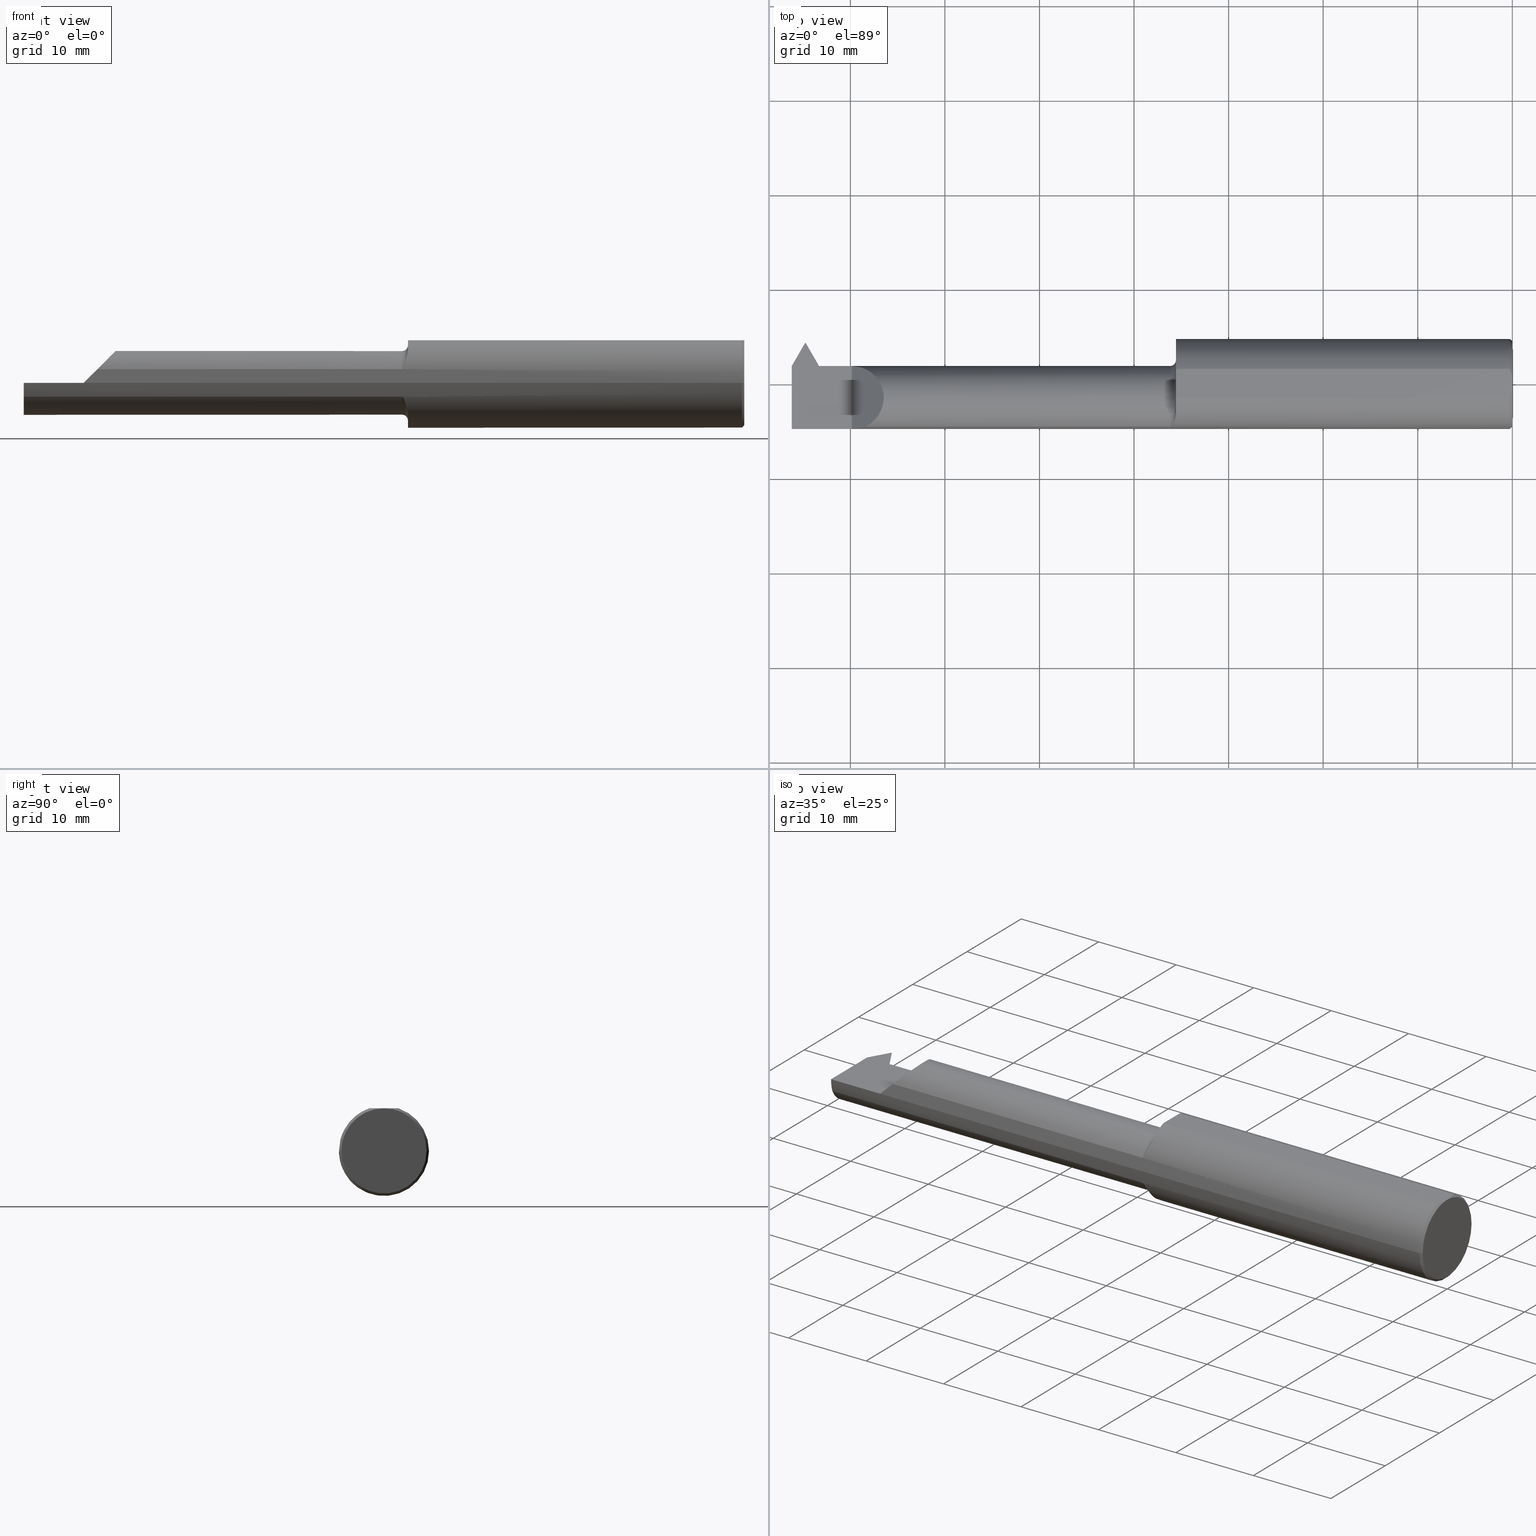
[diagram: canonical four-view strip — front | top / right | iso, engineering-drawing reading convention]
A machine part, canonical four-view strip (front | top / right | iso — engineering-drawing reading convention). The complete STEP part file that produces these views, byte-faithful:
ISO-10303-21;
HEADER;
FILE_DESCRIPTION (( 'STEP AP203' ),
    '1' );
FILE_NAME ('231899-LHTT3601500.STEP',
    '2025-01-28T18:49:41',
    ( '' ),
    ( '' ),
    'SwSTEP 2.0',
    'SolidWorks 2024',
    '' );
FILE_SCHEMA (( 'CONFIG_CONTROL_DESIGN' ));
ENDSEC;

DATA;
#1 = EDGE_LOOP ( 'NONE', ( #494, #796, #620, #804 ) ) ;
#2 = CC_DESIGN_PERSON_AND_ORGANIZATION_ASSIGNMENT ( #283, #436, ( #854 ) ) ;
#3 = ORIENTED_EDGE ( 'NONE', *, *, #769, .T. ) ;
#4 = DIRECTION ( 'NONE',  ( 1.224646799147313518E-16, -1.000000000000000000, 0.000000000000000000 ) ) ;
#5 = CARTESIAN_POINT ( 'NONE',  ( -1.400000000000000133, 1.347111479062088257E-16, 0.000000000000000000 ) ) ;
#6 = AXIS2_PLACEMENT_3D ( 'NONE', #842, #383, #230 ) ;
#7 = FACE_OUTER_BOUND ( 'NONE', #472, .T. ) ;
#8 = DIRECTION ( 'NONE',  ( 1.000000000000000000, 0.000000000000000000, 0.000000000000000000 ) ) ;
#9 = DIRECTION ( 'NONE',  ( 0.000000000000000000, -0.7071067811865535679, -0.7071067811865415775 ) ) ;
#10 = EDGE_CURVE ( 'NONE', #103, #630, #250, .T. ) ;
#11 = DIRECTION ( 'NONE',  ( 0.000000000000000000, 1.000000000000000000, 0.000000000000000000 ) ) ;
#12 = ORIENTED_EDGE ( 'NONE', *, *, #675, .F. ) ;
#13 = DIRECTION ( 'NONE',  ( -1.000000000000000000, -1.224646799147313518E-16, 0.000000000000000000 ) ) ;
#14 = AXIS2_PLACEMENT_3D ( 'NONE', #47, #456, #724 ) ;
#15 = DIRECTION ( 'NONE',  ( 1.224646799147313518E-16, -1.000000000000000000, 0.000000000000000000 ) ) ;
#16 = ORIENTED_EDGE ( 'NONE', *, *, #90, .F. ) ;
#17 = APPROVAL_STATUS ( 'not_yet_approved' ) ;
#18 = CARTESIAN_POINT ( 'NONE',  ( -1.424999999999999600, -0.1783697086546693900, 0.05730854678360265686 ) ) ;
#19 = AXIS2_PLACEMENT_3D ( 'NONE', #480, #277, #556 ) ;
#20 = VECTOR ( 'NONE', #148, 39.37007874015748143 ) ;
#21 = DIRECTION ( 'NONE',  ( -1.000000000000000000, -1.224646799147352961E-16, 0.000000000000000000 ) ) ;
#22 = VERTEX_POINT ( 'NONE', #734 ) ;
#23 = APPROVAL_ROLE ( '' ) ;
#24 = APPROVAL_PERSON_ORGANIZATION ( #363, #346, #228 ) ;
#25 = EDGE_CURVE ( 'NONE', #22, #851, #513, .T. ) ;
#26 = CARTESIAN_POINT ( 'NONE',  ( -1.400000000000000133, -0.1160303770344982138, 0.1470951192431557419 ) ) ;
#27 = EDGE_CURVE ( 'NONE', #843, #851, #860, .T. ) ;
#28 = CARTESIAN_POINT ( 'NONE',  ( -2.870501519666967649, 0.06407714550917130436, -0.05196724008908396725 ) ) ;
#29 = EDGE_LOOP ( 'NONE', ( #644, #167, #82, #129 ) ) ;
#30 = DIRECTION ( 'NONE',  ( 0.4999999999999949485, -0.8660254037844414832, -2.689675128582525702E-14 ) ) ;
#31 = CARTESIAN_POINT ( 'NONE',  ( -2.692691453216398134, -0.1783697086546693344, 0.05730854678360255278 ) ) ;
#32 = CIRCLE ( 'NONE', #777, 0.1873499999999999888 ) ;
#33 = VERTEX_POINT ( 'NONE', #731 ) ;
#34 = PERSON_AND_ORGANIZATION ( #379, #790 ) ;
#35 = LINE ( 'NONE', #826, #629 ) ;
#36 = CARTESIAN_POINT ( 'NONE',  ( -0.009999999999999620304, 0.06039039658753714984, 0.1773500000000000354 ) ) ;
#37 = VECTOR ( 'NONE', #846, 39.37007874015748143 ) ;
#38 = AXIS2_PLACEMENT_3D ( 'NONE', #802, #331, #66 ) ;
#39 = ORIENTED_EDGE ( 'NONE', *, *, #163, .T. ) ;
#40 = ADVANCED_FACE ( 'NONE', ( #792 ), #127, .F. ) ;
#41 = LINE ( 'NONE', #835, #806 ) ;
#42 = CARTESIAN_POINT ( 'NONE',  ( -1.400000000000000133, -0.05835000000000015868, 0.000000000000000000 ) ) ;
#43 = VERTEX_POINT ( 'NONE', #538 ) ;
#44 = FACE_OUTER_BOUND ( 'NONE', #781, .T. ) ;
#45 = EDGE_CURVE ( 'NONE', #349, #43, #395, .T. ) ;
#46 = ORIENTED_EDGE ( 'NONE', *, *, #653, .F. ) ;
#47 = CARTESIAN_POINT ( 'NONE',  ( 0.000000000000000000, 3.061616997868382155E-16, 0.000000000000000000 ) ) ;
#48 = ORIENTED_EDGE ( 'NONE', *, *, #371, .T. ) ;
#49 = VECTOR ( 'NONE', #333, 39.37007874015748143 ) ;
#50 = CARTESIAN_POINT ( 'NONE',  ( -1.414331470962521875, -0.1730809661842618030, -0.07185561948439779523 ) ) ;
#51 = EDGE_CURVE ( 'NONE', #843, #446, #739, .T. ) ;
#52 = EDGE_CURVE ( 'NONE', #694, #455, #196, .T. ) ;
#53 = ORIENTED_EDGE ( 'NONE', *, *, #496, .T. ) ;
#54 = CARTESIAN_POINT ( 'NONE',  ( -1.400000000000000133, -0.1160303770351317904, -0.1470951192429073018 ) ) ;
#55 = CARTESIAN_POINT ( 'NONE',  ( 2.171911098287766261E-17, -0.1773500000000001464, 0.000000000000000000 ) ) ;
#56 = FACE_OUTER_BOUND ( 'NONE', #654, .T. ) ;
#57 = FACE_OUTER_BOUND ( 'NONE', #680, .T. ) ;
#58 = CC_DESIGN_APPROVAL ( #850, ( #811 ) ) ;
#59 = CARTESIAN_POINT ( 'NONE',  ( -2.692691453216398134, -0.1783697086546693344, 0.05730854678360255278 ) ) ;
#60 = AXIS2_PLACEMENT_3D ( 'NONE', #686, #815, #616 ) ;
#61 = ORIENTED_EDGE ( 'NONE', *, *, #765, .F. ) ;
#62 = CIRCLE ( 'NONE', #91, 0.1873499999999999888 ) ;
#63 = AXIS2_PLACEMENT_3D ( 'NONE', #124, #191, #454 ) ;
#64 = ADVANCED_FACE ( 'NONE', ( #56 ), #874, .F. ) ;
#65 = CARTESIAN_POINT ( 'NONE',  ( -3.000000000000000444, 0.05417595023755275574, -0.05000000000000009992 ) ) ;
#66 = DIRECTION ( 'NONE',  ( -1.000000000000000000, 0.000000000000000000, -0.000000000000000000 ) ) ;
#67 = VERTEX_POINT ( 'NONE', #601 ) ;
#68 = DIRECTION ( 'NONE',  ( 1.840441170054035089E-14, -0.9799247046208295897, 0.1993679344171976342 ) ) ;
#69 = LINE ( 'NONE', #126, #49 ) ;
#70 = DIRECTION ( 'NONE',  ( 1.000000000000000000, 1.224646799147352961E-16, -0.000000000000000000 ) ) ;
#71 = ORIENTED_EDGE ( 'NONE', *, *, #25, .F. ) ;
#72 = LINE ( 'NONE', #483, #290 ) ;
#73 = DIRECTION ( 'NONE',  ( 0.000000000000000000, -0.7071067811865434649, -0.7071067811865515695 ) ) ;
#74 = DIRECTION ( 'NONE',  ( -9.422009876951564852E-18, 1.000000000000000000, 1.608104540654732770E-16 ) ) ;
#75 = DIRECTION ( 'NONE',  ( -9.422009876951564852E-18, 1.000000000000000000, 0.000000000000000000 ) ) ;
#76 = CONICAL_SURFACE ( 'NONE', #394, 0.1773500000000004795, 0.7853981633974431720 ) ;
#77 = LINE ( 'NONE', #337, #368 ) ;
#78 = ORIENTED_EDGE ( 'NONE', *, *, #675, .T. ) ;
#79 = LINE ( 'NONE', #260, #625 ) ;
#80 = DIRECTION ( 'NONE',  ( 1.000000000000000000, 1.224646799147352961E-16, -0.000000000000000000 ) ) ;
#81 = CARTESIAN_POINT ( 'NONE',  ( -2.750000000000000888, 0.07464999999999998026, 0.000000000000000000 ) ) ;
#82 = ORIENTED_EDGE ( 'NONE', *, *, #743, .F. ) ;
#83 = DATE_TIME_ROLE ( 'creation_date' ) ;
#84 = CARTESIAN_POINT ( 'NONE',  ( -1.399999999999979039, -0.1236042208122536262, 0.1411207813207414341 ) ) ;
#85 = CIRCLE ( 'NONE', #583, 0.1873499999999999888 ) ;
#86 = DIRECTION ( 'NONE',  ( 0.000000000000000000, -1.000000000000000000, -8.972136187338141305E-17 ) ) ;
#87 = ADVANCED_FACE ( 'NONE', ( #326 ), #532, .T. ) ;
#88 = ORIENTED_EDGE ( 'NONE', *, *, #650, .F. ) ;
#89 = CARTESIAN_POINT ( 'NONE',  ( -1.402035612499372659E-15, 0.07465000000005403424, 0.000000000000000000 ) ) ;
#90 = EDGE_CURVE ( 'NONE', #459, #215, #741, .T. ) ;
#91 = AXIS2_PLACEMENT_3D ( 'NONE', #805, #13, #329 ) ;
#92 = DIRECTION ( 'NONE',  ( -1.000000000000000000, -9.422009876951564852E-18, -0.000000000000000000 ) ) ;
#93 = ORIENTED_EDGE ( 'NONE', *, *, #186, .T. ) ;
#94 = DATE_AND_TIME ( #344, #816 ) ;
#95 = CARTESIAN_POINT ( 'NONE',  ( -1.423764212023045150, -0.1783697086546791599, 0.05730854678357224369 ) ) ;
#96 = ADVANCED_FACE ( 'NONE', ( #401 ), #316, .T. ) ;
#97 = DIRECTION ( 'NONE',  ( -0.7071067811865513475, 0.000000000000000000, -0.7071067811865436870 ) ) ;
#98 = APPLICATION_CONTEXT ( 'configuration controlled 3d designs of mechanical parts and assemblies' ) ;
#99 = ORIENTED_EDGE ( 'NONE', *, *, #729, .T. ) ;
#100 = CARTESIAN_POINT ( 'NONE',  ( -2.881074374157797546, 0.04759084417664784239, -0.1330000000000000071 ) ) ;
#101 = CARTESIAN_POINT ( 'NONE',  ( 1.674854427290641782E-17, 0.06447738502888293588, -0.04999999999993170324 ) ) ;
#102 = CIRCLE ( 'NONE', #60, 0.1873499999999999888 ) ;
#103 = VERTEX_POINT ( 'NONE', #550 ) ;
#104 = SHAPE_DEFINITION_REPRESENTATION ( #145, #746 ) ;
#105 = CARTESIAN_POINT ( 'NONE',  ( -2.881947536149771061, -0.05835000000000024889, -0.1330000000000000349 ) ) ;
#106 = ADVANCED_FACE ( 'NONE', ( #7 ), #612, .T. ) ;
#107 = FACE_OUTER_BOUND ( 'NONE', #451, .T. ) ;
#108 = CIRCLE ( 'NONE', #783, 0.1873499999999999888 ) ;
#109 = ORIENTED_EDGE ( 'NONE', *, *, #642, .T. ) ;
#110 = CARTESIAN_POINT ( 'NONE',  ( -0.006863038267948253987, -0.05065855487579219718, 0.1773500000000001187 ) ) ;
#111 = ORIENTED_EDGE ( 'NONE', *, *, #577, .T. ) ;
#112 = CARTESIAN_POINT ( 'NONE',  ( -3.000000000000000444, -6.123233995736767268E-17, 0.000000000000000000 ) ) ;
#113 = EDGE_CURVE ( 'NONE', #338, #578, #617, .T. ) ;
#114 = ORIENTED_EDGE ( 'NONE', *, *, #599, .T. ) ;
#115 = CARTESIAN_POINT ( 'NONE',  ( -1.024723209186555203E-17, 0.1773500000000007848, 2.233143438245201271E-17 ) ) ;
#116 = EDGE_CURVE ( 'NONE', #187, #370, #619, .T. ) ;
#117 = VERTEX_POINT ( 'NONE', #493 ) ;
#118 = VECTOR ( 'NONE', #637, 39.37007874015748854 ) ;
#119 = CARTESIAN_POINT ( 'NONE',  ( -1.418162645443745928, -0.1762760481395241330, -0.06349063590883695374 ) ) ;
#120 = CARTESIAN_POINT ( 'NONE',  ( -2.132231382422093979, -1.231044362615963061, 0.000000000000000000 ) ) ;
#121 = CARTESIAN_POINT ( 'NONE',  ( 1.147187889101280854E-17, 3.061616997868382155E-16, 0.000000000000000000 ) ) ;
#122 = CARTESIAN_POINT ( 'NONE',  ( -1.424999999999999600, -0.1783697086546693900, -0.05730854678360270543 ) ) ;
#123 = CARTESIAN_POINT ( 'NONE',  ( -0.0009167640511159435429, 0.02059964124962118323, 0.1773500000000001187 ) ) ;
#124 = CARTESIAN_POINT ( 'NONE',  ( -2.282268617577938752, 1.317668400721618838, 0.000000000000000000 ) ) ;
#125 = EDGE_CURVE ( 'NONE', #788, #161, #77, .T. ) ;
#126 = CARTESIAN_POINT ( 'NONE',  ( -2.881074374157795770, -0.01852261497118663780, -0.1330000000000000349 ) ) ;
#127 = PLANE ( 'NONE',  #63 ) ;
#128 = AXIS2_PLACEMENT_3D ( 'NONE', #568, #831, #297 ) ;
#129 = ORIENTED_EDGE ( 'NONE', *, *, #830, .F. ) ;
#130 = VECTOR ( 'NONE', #341, 39.37007874015748143 ) ;
#131 = CARTESIAN_POINT ( 'NONE',  ( -3.000000000000000444, -0.1873500000000000443, 2.294375778202566330E-17 ) ) ;
#132 = APPROVAL_PERSON_ORGANIZATION ( #632, #405, #23 ) ;
#133 = DIRECTION ( 'NONE',  ( -6.842104469694088491E-17, 0.3768974211598653534, 0.9262550048032361927 ) ) ;
#134 = ORIENTED_EDGE ( 'NONE', *, *, #691, .F. ) ;
#135 = LINE ( 'NONE', #207, #179 ) ;
#136 = DIRECTION ( 'NONE',  ( 1.000000000000000000, 1.224646799147352961E-16, -0.000000000000000000 ) ) ;
#137 = ORIENTED_EDGE ( 'NONE', *, *, #786, .F. ) ;
#138 = DIRECTION ( 'NONE',  ( -0.1955200734030769771, 0.1955200734030732579, 0.9610118635026896339 ) ) ;
#139 = CARTESIAN_POINT ( 'NONE',  ( -0.009999999999999620304, 0.06039039658753714984, 0.1773500000000000354 ) ) ;
#140 = VECTOR ( 'NONE', #784, 39.37007874015748143 ) ;
#141 = FACE_OUTER_BOUND ( 'NONE', #667, .T. ) ;
#142 = EDGE_LOOP ( 'NONE', ( #245, #755, #795, #412, #362, #111, #581 ) ) ;
#143 = DIRECTION ( 'NONE',  ( -0.7071067811865512365, 0.7071067811865436870, 8.659560562354888485E-17 ) ) ;
#144 = CARTESIAN_POINT ( 'NONE',  ( -2.881074374157795770, -0.05835000000000017950, 0.000000000000000000 ) ) ;
#145 = PRODUCT_DEFINITION_SHAPE ( 'NONE', 'NONE',  #811 ) ;
#146 = ORIENTED_EDGE ( 'NONE', *, *, #264, .T. ) ;
#147 = CARTESIAN_POINT ( 'NONE',  ( -1.406810654710997532, -0.1605151270935940011, 0.09708342838367729766 ) ) ;
#148 = DIRECTION ( 'NONE',  ( -1.000000000000000000, -1.553500558300393113E-17, -0.000000000000000000 ) ) ;
#149 = ORIENTED_EDGE ( 'NONE', *, *, #237, .F. ) ;
#150 = CALENDAR_DATE ( 2025, 28, 1 ) ;
#151 = DIRECTION ( 'NONE',  ( 1.000000000000000000, 1.878145495644149877E-14, 0.000000000000000000 ) ) ;
#152 = CARTESIAN_POINT ( 'NONE',  ( -2.881074374157795770, -0.05835000000000024889, -0.1330000000000000349 ) ) ;
#153 = ORIENTED_EDGE ( 'NONE', *, *, #678, .F. ) ;
#154 = CARTESIAN_POINT ( 'NONE',  ( -1.425000000000000044, -0.05835000000000017950, 0.000000000000000000 ) ) ;
#155 = AXIS2_PLACEMENT_3D ( 'NONE', #744, #204, #479 ) ;
#156 = CARTESIAN_POINT ( 'NONE',  ( 0.000000000000000000, 3.061616997868382155E-16, 0.000000000000000000 ) ) ;
#157 = ORIENTED_EDGE ( 'NONE', *, *, #423, .T. ) ;
#158 = CARTESIAN_POINT ( 'NONE',  ( -2.983053705027747693, 0.0005277941295426391436, -0.1330000000000000349 ) ) ;
#159 = PRODUCT ( '231899-LHTT3601500', '231899-LHTT3601500', '', ( #413 ) ) ;
#160 = PLANE ( 'NONE',  #683 ) ;
#161 = VERTEX_POINT ( 'NONE', #757 ) ;
#162 = COORDINATED_UNIVERSAL_TIME_OFFSET ( 8, 0, .BEHIND. ) ;
#163 = EDGE_CURVE ( 'NONE', #231, #843, #108, .T. ) ;
#164 = CARTESIAN_POINT ( 'NONE',  ( -2.870501519666967649, 0.06407714550917130436, -0.05196724008908396725 ) ) ;
#165 = PLANE ( 'NONE',  #866 ) ;
#166 = PRODUCT_DEFINITION_FORMATION_WITH_SPECIFIED_SOURCE ( 'ANY', '', #159, .NOT_KNOWN. ) ;
#167 = ORIENTED_EDGE ( 'NONE', *, *, #740, .F. ) ;
#168 = CARTESIAN_POINT ( 'NONE',  ( 1.147187889101280854E-17, 3.061616997868382155E-16, 0.000000000000000000 ) ) ;
#169 = CARTESIAN_POINT ( 'NONE',  ( -2.881074374157795770, 0.07464999999999984148, 0.000000000000000000 ) ) ;
#170 = VECTOR ( 'NONE', #143, 39.37007874015748854 ) ;
#171 = AXIS2_PLACEMENT_3D ( 'NONE', #688, #750, #419 ) ;
#172 = ORIENTED_EDGE ( 'NONE', *, *, #586, .T. ) ;
#173 = CARTESIAN_POINT ( 'NONE',  ( -2.132231382422093979, -1.231044362615963061, 0.000000000000000000 ) ) ;
#174 = EDGE_CURVE ( 'NONE', #373, #187, #764, .T. ) ;
#175 = ORIENTED_EDGE ( 'NONE', *, *, #360, .T. ) ;
#176 = ADVANCED_FACE ( 'NONE', ( #220 ), #813, .T. ) ;
#177 = CARTESIAN_POINT ( 'NONE',  ( -1.417141984682263267, -0.1755174329696180535, -0.06556455082929055211 ) ) ;
#178 = ORIENTED_EDGE ( 'NONE', *, *, #653, .T. ) ;
#179 = VECTOR ( 'NONE', #748, 39.37007874015748143 ) ;
#180 = CARTESIAN_POINT ( 'NONE',  ( -1.406840882823497285, -0.1605979928433038106, -0.09695168669191682465 ) ) ;
#181 = CARTESIAN_POINT ( 'NONE',  ( -1.400000000000000133, 0.2123500000000002053, 0.1773500000000001187 ) ) ;
#182 = VECTOR ( 'NONE', #527, 39.37007874015748854 ) ;
#183 = AXIS2_PLACEMENT_3D ( 'NONE', #463, #388, #674 ) ;
#184 = PLANE ( 'NONE',  #666 ) ;
#185 = CARTESIAN_POINT ( 'NONE',  ( -2.750000000000000888, -0.2500000000000000000, 0.000000000000000000 ) ) ;
#186 = EDGE_CURVE ( 'NONE', #430, #256, #552, .T. ) ;
#187 = VERTEX_POINT ( 'NONE', #281 ) ;
#188 = EDGE_LOOP ( 'NONE', ( #507, #172, #407, #771 ) ) ;
#189 = CARTESIAN_POINT ( 'NONE',  ( -1.424999999999999600, -0.1783697086546693900, -0.05730854678360270543 ) ) ;
#190 = CARTESIAN_POINT ( 'NONE',  ( -2.282268617577938752, 1.317668400721618838, 0.000000000000000000 ) ) ;
#191 = DIRECTION ( 'NONE',  ( 0.8486396879976070284, -0.4899623523104038592, 0.1993679344171975787 ) ) ;
#192 = CARTESIAN_POINT ( 'NONE',  ( -1.400000000000000133, -0.1160303770344982138, 0.1470951192431557419 ) ) ;
#193 = CARTESIAN_POINT ( 'NONE',  ( -2.171911098287766261E-17, 0.1773500000000007848, 2.171911098287836519E-17 ) ) ;
#194 = DIRECTION ( 'NONE',  ( 0.000000000000000000, 1.000000000000000000, 0.000000000000000000 ) ) ;
#195 = VECTOR ( 'NONE', #367, 39.37007874015748143 ) ;
#196 = CIRCLE ( 'NONE', #239, 0.1773500000000004795 ) ;
#197 = CARTESIAN_POINT ( 'NONE',  ( -2.800000000000000266, 0.1524514882866900289, -0.05000000000000000278 ) ) ;
#198 = LOCAL_TIME ( 10, 49, 41.00000000000000000, #566 ) ;
#199 = EDGE_CURVE ( 'NONE', #390, #572, #837, .T. ) ;
#200 = DIRECTION ( 'NONE',  ( 0.000000000000000000, -1.000000000000000000, 0.000000000000000000 ) ) ;
#201 = ORIENTED_EDGE ( 'NONE', *, *, #791, .T. ) ;
#202 = CARTESIAN_POINT ( 'NONE',  ( -0.009999999999999620304, 3.049370529876909883E-16, 0.000000000000000000 ) ) ;
#203 = ADVANCED_FACE ( 'NONE', ( #622 ), #76, .T. ) ;
#204 = DIRECTION ( 'NONE',  ( 1.000000000000000000, 1.224646799147352961E-16, -0.000000000000000000 ) ) ;
#205 = DIRECTION ( 'NONE',  ( 0.000000000000000000, -1.000000000000000000, 0.000000000000000000 ) ) ;
#206 = ORIENTED_EDGE ( 'NONE', *, *, #308, .F. ) ;
#207 = CARTESIAN_POINT ( 'NONE',  ( -2.881947536149771061, 1.001585846846495986, 0.8871084618176654502 ) ) ;
#208 = LINE ( 'NONE', #567, #512 ) ;
#209 = CC_DESIGN_PERSON_AND_ORGANIZATION_ASSIGNMENT ( #772, #624, ( #811 ) ) ;
#210 = CARTESIAN_POINT ( 'NONE',  ( -2.873857010182696126, 0.07107790796794667687, -0.03547447728800876693 ) ) ;
#211 = ORIENTED_EDGE ( 'NONE', *, *, #327, .F. ) ;
#212 = CARTESIAN_POINT ( 'NONE',  ( -3.000000000000000444, 0.1873499999999999055, 0.000000000000000000 ) ) ;
#213 = ADVANCED_FACE ( 'NONE', ( #564 ), #355, .T. ) ;
#214 = CARTESIAN_POINT ( 'NONE',  ( -2.881074374157795770, 0.07464999999999984148, 0.000000000000000000 ) ) ;
#215 = VERTEX_POINT ( 'NONE', #704 ) ;
#216 = CARTESIAN_POINT ( 'NONE',  ( -2.881947536149771061, 0.04759084417664782851, -0.1330000000000000071 ) ) ;
#217 = CARTESIAN_POINT ( 'NONE',  ( -2.877429102214748013, 0.07464999999999998026, -0.01791708402103228334 ) ) ;
#218 = ORIENTED_EDGE ( 'NONE', *, *, #382, .T. ) ;
#219 = CARTESIAN_POINT ( 'NONE',  ( -1.414343418362526084, -0.1730952584121031868, 0.07182162584505984160 ) ) ;
#220 = FACE_OUTER_BOUND ( 'NONE', #417, .T. ) ;
#221 = ORIENTED_EDGE ( 'NONE', *, *, #786, .T. ) ;
#222 = APPROVAL_DATE_TIME ( #94, #850 ) ;
#223 = CARTESIAN_POINT ( 'NONE',  ( -2.881074374157795770, 0.07464999999999991087, -1.440410083513921324E-17 ) ) ;
#224 = VECTOR ( 'NONE', #136, 39.37007874015748143 ) ;
#225 = DIRECTION ( 'NONE',  ( -0.7071067811865511255, -0.7071067811865440200, 0.000000000000000000 ) ) ;
#226 = ADVANCED_FACE ( 'NONE', ( #141 ), #684, .F. ) ;
#227 = EDGE_LOOP ( 'NONE', ( #510, #435, #282, #747 ) ) ;
#228 = APPROVAL_ROLE ( '' ) ;
#229 = CARTESIAN_POINT ( 'NONE',  ( -1.402207105173743695, -0.1438831799117020749, 0.1203810775392133298 ) ) ;
#230 = DIRECTION ( 'NONE',  ( 0.000000000000000000, -1.000000000000000000, 0.000000000000000000 ) ) ;
#231 = VERTEX_POINT ( 'NONE', #761 ) ;
#232 = LINE ( 'NONE', #652, #534 ) ;
#233 = DIRECTION ( 'NONE',  ( 1.000000000000000000, 9.422009876951564852E-18, 0.000000000000000000 ) ) ;
#234 = AXIS2_PLACEMENT_3D ( 'NONE', #452, #598, #778 ) ;
#235 = ORIENTED_EDGE ( 'NONE', *, *, #163, .F. ) ;
#236 = CYLINDRICAL_SURFACE ( 'NONE', #820, 0.1330000000000001181 ) ;
#237 = EDGE_CURVE ( 'NONE', #578, #390, #422, .T. ) ;
#238 = VECTOR ( 'NONE', #151, 39.37007874015748143 ) ;
#239 = AXIS2_PLACEMENT_3D ( 'NONE', #121, #726, #672 ) ;
#240 = ADVANCED_FACE ( 'NONE', ( #635 ), #286, .T. ) ;
#241 = ORIENTED_EDGE ( 'NONE', *, *, #399, .T. ) ;
#242 = DIRECTION ( 'NONE',  ( -1.224646799147352961E-16, 1.000000000000000000, 0.000000000000000000 ) ) ;
#243 = ORIENTED_EDGE ( 'NONE', *, *, #340, .F. ) ;
#244 = DIRECTION ( 'NONE',  ( 0.000000000000000000, 1.000000000000000000, 8.972136187338140072E-17 ) ) ;
#245 = ORIENTED_EDGE ( 'NONE', *, *, #276, .F. ) ;
#246 = VECTOR ( 'NONE', #870, 39.37007874015748143 ) ;
#247 = CYLINDRICAL_SURFACE ( 'NONE', #234, 0.1873499999999999888 ) ;
#248 = DIRECTION ( 'NONE',  ( 0.000000000000000000, -1.000000000000000000, 0.000000000000000000 ) ) ;
#249 = EDGE_CURVE ( 'NONE', #215, #788, #462, .T. ) ;
#250 = LINE ( 'NONE', #181, #631 ) ;
#251 = AXIS2_PLACEMENT_3D ( 'NONE', #273, #21, #485 ) ;
#252 = AXIS2_PLACEMENT_3D ( 'NONE', #528, #70, #194 ) ;
#253 = EDGE_LOOP ( 'NONE', ( #175, #137, #71, #605 ) ) ;
#254 = DIRECTION ( 'NONE',  ( -0.000000000000000000, 1.000000000000000000, -0.000000000000000000 ) ) ;
#255 = EDGE_LOOP ( 'NONE', ( #46, #298, #218 ) ) ;
#256 = VERTEX_POINT ( 'NONE', #59 ) ;
#257 = DIRECTION ( 'NONE',  ( -1.000000000000000000, -1.224646799147313518E-16, 0.000000000000000000 ) ) ;
#258 = CARTESIAN_POINT ( 'NONE',  ( -3.000000000000000444, -6.123233995736767268E-17, 0.000000000000000000 ) ) ;
#259 = ORIENTED_EDGE ( 'NONE', *, *, #45, .T. ) ;
#260 = CARTESIAN_POINT ( 'NONE',  ( -2.273458874589973089, 1.312582093236025482, -0.05000000000000784373 ) ) ;
#261 = ADVANCED_FACE ( 'NONE', ( #107 ), #160, .F. ) ;
#262 = PLANE ( 'NONE',  #443 ) ;
#263 = DIRECTION ( 'NONE',  ( 1.000000000000000000, 9.422009876951564852E-18, 0.000000000000000000 ) ) ;
#264 = EDGE_CURVE ( 'NONE', #455, #503, #661, .T. ) ;
#265 = CARTESIAN_POINT ( 'NONE',  ( 0.000000000000000000, 3.061616997868382155E-16, 0.000000000000000000 ) ) ;
#266 = AXIS2_PLACEMENT_3D ( 'NONE', #604, #468, #75 ) ;
#267 = DIRECTION ( 'NONE',  ( -0.02328694095508794526, -0.3419273951315133786, -0.9394377972167885504 ) ) ;
#268 = CARTESIAN_POINT ( 'NONE',  ( -3.000000000000000444, -6.123233995736767268E-17, 0.000000000000000000 ) ) ;
#269 = ORIENTED_EDGE ( 'NONE', *, *, #743, .T. ) ;
#270 =( CONVERSION_BASED_UNIT ( 'INCH', #542 ) LENGTH_UNIT ( ) NAMED_UNIT ( #300 ) );
#271 = CC_DESIGN_PERSON_AND_ORGANIZATION_ASSIGNMENT ( #706, #695, ( #166 ) ) ;
#272 = LINE ( 'NONE', #537, #782 ) ;
#273 = CARTESIAN_POINT ( 'NONE',  ( -3.000000000000000444, -6.123233995736767268E-17, 0.000000000000000000 ) ) ;
#274 = ORIENTED_EDGE ( 'NONE', *, *, #10, .T. ) ;
#275 = CARTESIAN_POINT ( 'NONE',  ( -2.881074374157795770, -0.05835000000000024889, -0.1330000000000000349 ) ) ;
#276 = EDGE_CURVE ( 'NONE', #648, #256, #857, .T. ) ;
#277 = DIRECTION ( 'NONE',  ( 1.000000000000000000, 1.224646799147352961E-16, -0.000000000000000000 ) ) ;
#278 = ORIENTED_EDGE ( 'NONE', *, *, #859, .F. ) ;
#279 = LINE ( 'NONE', #100, #378 ) ;
#280 = AXIS2_PLACEMENT_3D ( 'NONE', #197, #812, #73 ) ;
#281 = CARTESIAN_POINT ( 'NONE',  ( -2.943260591652577141, 0.1524514882866898902, -0.05000000000000069666 ) ) ;
#282 = ORIENTED_EDGE ( 'NONE', *, *, #249, .T. ) ;
#283 = PERSON_AND_ORGANIZATION ( #379, #790 ) ;
#284 = PLANE ( 'NONE',  #307 ) ;
#285 = APPLICATION_CONTEXT ( 'configuration controlled 3d designs of mechanical parts and assemblies' ) ;
#286 = PLANE ( 'NONE',  #128 ) ;
#287 = ORIENTED_EDGE ( 'NONE', *, *, #294, .F. ) ;
#288 = CARTESIAN_POINT ( 'NONE',  ( -1.400000000000000133, 0.06039039658753714290, 0.1773500000000000909 ) ) ;
#289 = ADVANCED_FACE ( 'NONE', ( #434 ), #600, .F. ) ;
#290 = VECTOR ( 'NONE', #138, 39.37007874015748854 ) ;
#291 = DIRECTION ( 'NONE',  ( 0.9799247046208295897, 9.232860245606301436E-18, 0.1993679344171976342 ) ) ;
#292 = ORIENTED_EDGE ( 'NONE', *, *, #563, .F. ) ;
#293 = COORDINATED_UNIVERSAL_TIME_OFFSET ( 8, 0, .BEHIND. ) ;
#294 = EDGE_CURVE ( 'NONE', #22, #256, #457, .T. ) ;
#295 = DIRECTION ( 'NONE',  ( 1.000000000000000000, 1.878145495644149877E-14, 1.616780750868055111E-30 ) ) ;
#296 = VECTOR ( 'NONE', #133, 39.37007874015748854 ) ;
#297 = DIRECTION ( 'NONE',  ( -0.4999999999999938383, 0.000000000000000000, 0.8660254037844421493 ) ) ;
#298 = ORIENTED_EDGE ( 'NONE', *, *, #199, .T. ) ;
#299 = DIRECTION ( 'NONE',  ( -0.5000000000000065503, 0.8660254037844348218, 8.991635853121663083E-17 ) ) ;
#300 = DIMENSIONAL_EXPONENTS ( 1.000000000000000000, 0.000000000000000000, 0.000000000000000000, 0.000000000000000000, 0.000000000000000000, 0.000000000000000000, 0.000000000000000000 ) ;
#301 = LINE ( 'NONE', #275, #130 ) ;
#302 = ORIENTED_EDGE ( 'NONE', *, *, #52, .T. ) ;
#303 = DIRECTION ( 'NONE',  ( 0.000000000000000000, -0.7071067811865535679, -0.7071067811865415775 ) ) ;
#304 = EDGE_CURVE ( 'NONE', #338, #430, #779, .T. ) ;
#305 = ORIENTED_EDGE ( 'NONE', *, *, #803, .T. ) ;
#306 = CARTESIAN_POINT ( 'NONE',  ( -1.422632702519553982, -0.1781504652642081354, -0.05799271583144598174 ) ) ;
#307 = AXIS2_PLACEMENT_3D ( 'NONE', #570, #626, #633 ) ;
#308 = EDGE_CURVE ( 'NONE', #648, #430, #665, .T. ) ;
#309 = ORIENTED_EDGE ( 'NONE', *, *, #371, .F. ) ;
#310 = CARTESIAN_POINT ( 'NONE',  ( -4.018563988022489946E-33, 2.586779880155948158E-16, 0.1773500000000000909 ) ) ;
#311 = ORIENTED_EDGE ( 'NONE', *, *, #27, .F. ) ;
#312 = CARTESIAN_POINT ( 'NONE',  ( -0.009999999999999620304, -0.06039039658753660861, 0.1773500000000000354 ) ) ;
#313 = CARTESIAN_POINT ( 'NONE',  ( -2.881074374157795770, -0.05835000000000015175, -0.1330000000000000349 ) ) ;
#314 = ADVANCED_FACE ( 'NONE', ( #863 ), #165, .F. ) ;
#315 = B_SPLINE_CURVE_WITH_KNOTS ( 'NONE', 3,
 ( #122, #722, #306, #787, #655, #119, #177, #50, #591, #856, #180, #381, #659, #54 ),
 .UNSPECIFIED., .F., .F.,
 ( 4, 2, 2, 2, 2, 2, 4 ),
 ( 1.965724206508649174E-07, 9.384097494423985142E-05, 0.0001874853774678288424, 0.0003747741825150062824, 0.0007493517926093602949, 0.001498507012798063441, 0.002996817453175475154 ),
 .UNSPECIFIED. ) ;
#316 = PLANE ( 'NONE',  #559 ) ;
#317 = AXIS2_PLACEMENT_3D ( 'NONE', #526, #68, #752 ) ;
#318 = ORIENTED_EDGE ( 'NONE', *, *, #358, .T. ) ;
#319 = DIRECTION ( 'NONE',  ( -1.000000000000000000, -9.422009876951564852E-18, -0.000000000000000000 ) ) ;
#320 = DIRECTION ( 'NONE',  ( -1.000000000000000000, -9.422009876951564852E-18, -0.000000000000000000 ) ) ;
#321 = VECTOR ( 'NONE', #92, 39.37007874015748143 ) ;
#322 = CARTESIAN_POINT ( 'NONE',  ( -2.905788793746045151, 0.04050362363142036987, -0.1678348018936242636 ) ) ;
#323 = ORIENTED_EDGE ( 'NONE', *, *, #627, .F. ) ;
#324 = PERSON_AND_ORGANIZATION_ROLE ( 'design_owner' ) ;
#325 = FACE_OUTER_BOUND ( 'NONE', #602, .T. ) ;
#326 = FACE_OUTER_BOUND ( 'NONE', #142, .T. ) ;
#327 = EDGE_CURVE ( 'NONE', #503, #630, #660, .T. ) ;
#328 = CARTESIAN_POINT ( 'NONE',  ( -3.000000000000000444, -0.1783697086546697508, -0.05730854678360152582 ) ) ;
#329 = DIRECTION ( 'NONE',  ( -1.253099476677462608E-16, 1.000000000000000000, 0.000000000000000000 ) ) ;
#330 = EDGE_CURVE ( 'NONE', #424, #685, #369, .T. ) ;
#331 = DIRECTION ( 'NONE',  ( 0.000000000000000000, 0.000000000000000000, -1.000000000000000000 ) ) ;
#332 = ORIENTED_EDGE ( 'NONE', *, *, #414, .F. ) ;
#333 = DIRECTION ( 'NONE',  ( -1.000000000000000000, 1.393821857617719541E-33, 1.393821857617696449E-33 ) ) ;
#334 = DIRECTION ( 'NONE',  ( 0.000000000000000000, 0.7071067811865534569, 0.7071067811865415775 ) ) ;
#335 = CC_DESIGN_PERSON_AND_ORGANIZATION_ASSIGNMENT ( #34, #573, ( #166 ) ) ;
#336 = CARTESIAN_POINT ( 'NONE',  ( -3.000000000000000444, -0.02882404976244833800, -0.1329999999999999793 ) ) ;
#337 = CARTESIAN_POINT ( 'NONE',  ( -3.000000000000000444, 0.1706499999999999406, 0.000000000000000000 ) ) ;
#338 = VERTEX_POINT ( 'NONE', #169 ) ;
#339 = APPLICATION_PROTOCOL_DEFINITION ( 'international standard', 'config_control_design', 1994, #98 ) ;
#340 = EDGE_CURVE ( 'NONE', #832, #343, #557, .T. ) ;
#341 = DIRECTION ( 'NONE',  ( 0.000000000000000000, 1.000000000000000000, 8.972136187338140072E-17 ) ) ;
#342 = CARTESIAN_POINT ( 'NONE',  ( -2.530319072763995258, -0.1008380660117481203, 0.2196809272360035481 ) ) ;
#343 = VERTEX_POINT ( 'NONE', #502 ) ;
#344 = CALENDAR_DATE ( 2025, 28, 1 ) ;
#345 = CARTESIAN_POINT ( 'NONE',  ( -2.800000000000000266, 0.1706499999999998296, 8.875653457662611807E-19 ) ) ;
#346 = APPROVAL ( #17, 'UNSPECIFIED' ) ;
#347 = VECTOR ( 'NONE', #585, 39.37007874015748143 ) ;
#348 = CARTESIAN_POINT ( 'NONE',  ( -2.570066830337791153, 0.07464999999999992475, 0.1799331696622079035 ) ) ;
#349 = VERTEX_POINT ( 'NONE', #717 ) ;
#350 = COORDINATED_UNIVERSAL_TIME_OFFSET ( 8, 0, .BEHIND. ) ;
#351 = DIRECTION ( 'NONE',  ( -0.4999999999999874545, -0.8660254037844458130, -8.991635853121732109E-17 ) ) ;
#352 = AXIS2_PLACEMENT_3D ( 'NONE', #5, #673, #677 ) ;
#353 = CLOSED_SHELL ( 'NONE', ( #203, #780, #87, #393, #176, #226, #492, #314, #834, #40, #716, #64, #261, #428, #213, #845, #634, #544, #719, #517, #614, #289, #240, #106, #96, #754 ) ) ;
#354 = LOCAL_TIME ( 10, 49, 41.00000000000000000, #162 ) ;
#355 = PLANE ( 'NONE',  #19 ) ;
#356 = ORIENTED_EDGE ( 'NONE', *, *, #358, .F. ) ;
#357 = CALENDAR_DATE ( 2025, 28, 1 ) ;
#358 = EDGE_CURVE ( 'NONE', #572, #446, #522, .T. ) ;
#359 = LINE ( 'NONE', #418, #118 ) ;
#360 = EDGE_CURVE ( 'NONE', #869, #832, #613, .T. ) ;
#361 = CARTESIAN_POINT ( 'NONE',  ( -4.018563988022489946E-33, 2.586779880155948158E-16, 0.1773500000000000909 ) ) ;
#362 = ORIENTED_EDGE ( 'NONE', *, *, #872, .T. ) ;
#363 = PERSON_AND_ORGANIZATION ( #379, #790 ) ;
#364 = CARTESIAN_POINT ( 'NONE',  ( -1.400459820461650517, -0.1306920593655936935, 0.1345866223284671870 ) ) ;
#365 = CARTESIAN_POINT ( 'NONE',  ( -2.942739408347422980, 0.1524514882866913890, -0.04999999999999792111 ) ) ;
#366 = ORIENTED_EDGE ( 'NONE', *, *, #496, .F. ) ;
#367 = DIRECTION ( 'NONE',  ( 0.000000000000000000, -1.000000000000000000, -8.972136187338142537E-17 ) ) ;
#368 = VECTOR ( 'NONE', #628, 39.37007874015748143 ) ;
#369 = LINE ( 'NONE', #55, #822 ) ;
#370 = VERTEX_POINT ( 'NONE', #387 ) ;
#371 = EDGE_CURVE ( 'NONE', #349, #67, #708, .T. ) ;
#372 = CARTESIAN_POINT ( 'NONE',  ( -0.004318418993203173434, -0.04060972747957806994, 0.1773500000000000909 ) ) ;
#373 = VERTEX_POINT ( 'NONE', #365 ) ;
#374 = DIRECTION ( 'NONE',  ( 0.000000000000000000, -1.000000000000000000, 0.000000000000000000 ) ) ;
#375 = EDGE_LOOP ( 'NONE', ( #785, #663, #39, #828, #221, #727, #157, #241 ) ) ;
#376 = DIRECTION ( 'NONE',  ( -0.5000000000000128786, 0.000000000000000000, -0.8660254037844310471 ) ) ;
#377 = AXIS2_PLACEMENT_3D ( 'NONE', #144, #824, #205 ) ;
#378 = VECTOR ( 'NONE', #295, 39.37007874015748143 ) ;
#379 = PERSON ( 'UNSPECIFIED', 'UNSPECIFIED', 'UNSPECIFIED', ('UNSPECIFIED'), ('UNSPECIFIED'), ('UNSPECIFIED') ) ;
#380 = ORIENTED_EDGE ( 'NONE', *, *, #174, .F. ) ;
#381 = CARTESIAN_POINT ( 'NONE',  ( -1.401810233260115668, -0.1445504080075231956, -0.1207082908324052517 ) ) ;
#382 = EDGE_CURVE ( 'NONE', #572, #639, #301, .T. ) ;
#383 = DIRECTION ( 'NONE',  ( 1.000000000000000000, 9.422009876951564852E-18, 0.000000000000000000 ) ) ;
#384 = ORIENTED_EDGE ( 'NONE', *, *, #414, .T. ) ;
#385 = ORIENTED_EDGE ( 'NONE', *, *, #599, .F. ) ;
#386 = CARTESIAN_POINT ( 'NONE',  ( -3.000000000000000444, -0.05835000000000024889, -0.1330000000000000349 ) ) ;
#387 = CARTESIAN_POINT ( 'NONE',  ( -2.943260591652576696, 0.06945148828669099605, -0.1329999999999999793 ) ) ;
#388 = DIRECTION ( 'NONE',  ( 1.000000000000000000, 1.553500558300393113E-17, -0.000000000000000000 ) ) ;
#389 = CIRCLE ( 'NONE', #465, 0.1773500000000004795 ) ;
#390 = VERTEX_POINT ( 'NONE', #875 ) ;
#391 = CARTESIAN_POINT ( 'NONE',  ( -3.000000000000000444, -0.1873500000000000443, 0.000000000000000000 ) ) ;
#392 = LINE ( 'NONE', #193, #170 ) ;
#393 = ADVANCED_FACE ( 'NONE', ( #554 ), #404, .T. ) ;
#394 = AXIS2_PLACEMENT_3D ( 'NONE', #156, #429, #15 ) ;
#395 = LINE ( 'NONE', #322, #540 ) ;
#396 = VECTOR ( 'NONE', #506, 39.37007874015748143 ) ;
#397 = ORIENTED_EDGE ( 'NONE', *, *, #116, .F. ) ;
#398 =( LENGTH_UNIT ( ) NAMED_UNIT ( * ) SI_UNIT ( $, .METRE. ) );
#399 = EDGE_CURVE ( 'NONE', #723, #685, #62, .T. ) ;
#400 = CARTESIAN_POINT ( 'NONE',  ( -2.891947536149771736, -0.01852261497118684597, -0.1330000000000000349 ) ) ;
#401 = FACE_OUTER_BOUND ( 'NONE', #855, .T. ) ;
#402 = ORIENTED_EDGE ( 'NONE', *, *, #464, .T. ) ;
#403 = DIRECTION ( 'NONE',  ( -1.000000000000000000, -1.224646799147313518E-16, 0.000000000000000000 ) ) ;
#404 = CYLINDRICAL_SURFACE ( 'NONE', #699, 0.1873499999999999888 ) ;
#405 = APPROVAL ( #431, 'UNSPECIFIED' ) ;
#406 = ORIENTED_EDGE ( 'NONE', *, *, #237, .T. ) ;
#407 = ORIENTED_EDGE ( 'NONE', *, *, #125, .T. ) ;
#408 = APPROVAL_PERSON_ORGANIZATION ( #797, #850, #490 ) ;
#409 = FACE_OUTER_BOUND ( 'NONE', #255, .T. ) ;
#410 = DIRECTION ( 'NONE',  ( 1.153799868128039183E-14, -0.7071067811865433539, -0.7071067811865514585 ) ) ;
#411 = AXIS2_PLACEMENT_3D ( 'NONE', #647, #291, #794 ) ;
#412 = ORIENTED_EDGE ( 'NONE', *, *, #561, .F. ) ;
#413 = MECHANICAL_CONTEXT ( 'NONE', #98, 'mechanical' ) ;
#414 = EDGE_CURVE ( 'NONE', #343, #630, #671, .T. ) ;
#415 = PLANE ( 'NONE',  #280 ) ;
#416 = CARTESIAN_POINT ( 'NONE',  ( -2.800000000000000266, 0.1524514882866900289, -0.05000000000000000278 ) ) ;
#417 = EDGE_LOOP ( 'NONE', ( #16, #751, #12, #705, #235, #153 ) ) ;
#418 = CARTESIAN_POINT ( 'NONE',  ( -2.944421640306047472, 0.1694994269776338991, -0.003161173398384122327 ) ) ;
#419 = DIRECTION ( 'NONE',  ( -0.000000000000000000, 0.000000000000000000, 1.000000000000000000 ) ) ;
#420 = ORIENTED_EDGE ( 'NONE', *, *, #650, .T. ) ;
#421 = LINE ( 'NONE', #158, #519 ) ;
#422 = LINE ( 'NONE', #698, #321 ) ;
#423 = EDGE_CURVE ( 'NONE', #343, #723, #611, .T. ) ;
#424 = VERTEX_POINT ( 'NONE', #737 ) ;
#425 = COORDINATED_UNIVERSAL_TIME_OFFSET ( 8, 0, .BEHIND. ) ;
#426 = FACE_OUTER_BOUND ( 'NONE', #758, .T. ) ;
#427 = VECTOR ( 'NONE', #80, 39.37007874015748143 ) ;
#428 = ADVANCED_FACE ( 'NONE', ( #749 ), #262, .F. ) ;
#429 = DIRECTION ( 'NONE',  ( -1.000000000000000000, -1.224646799147313518E-16, 0.000000000000000000 ) ) ;
#430 = VERTEX_POINT ( 'NONE', #801 ) ;
#431 = APPROVAL_STATUS ( 'not_yet_approved' ) ;
#432 = DIRECTION ( 'NONE',  ( 1.878446647226267823E-18, -0.1993679344171976064, -0.9799247046208294787 ) ) ;
#433 = CC_DESIGN_DATE_AND_TIME_ASSIGNMENT ( #839, #504, ( #854 ) ) ;
#434 = FACE_OUTER_BOUND ( 'NONE', #551, .T. ) ;
#435 = ORIENTED_EDGE ( 'NONE', *, *, #90, .T. ) ;
#436 = PERSON_AND_ORGANIZATION_ROLE ( 'classification_officer' ) ;
#437 = CARTESIAN_POINT ( 'NONE',  ( -2.141041125410065860, -1.236130670101558415, -0.05000000000004105327 ) ) ;
#438 = CARTESIAN_POINT ( 'NONE',  ( -3.000000000000000444, 0.07464999999999995250, 0.000000000000000000 ) ) ;
#439 = EDGE_CURVE ( 'NONE', #648, #685, #733, .T. ) ;
#440 = ORIENTED_EDGE ( 'NONE', *, *, #610, .T. ) ;
#441 = AXIS2_PLACEMENT_3D ( 'NONE', #265, #257, #4 ) ;
#442 = DIRECTION ( 'NONE',  ( 1.000000000000000000, 1.224646799147352961E-16, -0.000000000000000000 ) ) ;
#443 = AXIS2_PLACEMENT_3D ( 'NONE', #821, #687, #484 ) ;
#444 = VECTOR ( 'NONE', #263, 39.37007874015748143 ) ;
#445 = CARTESIAN_POINT ( 'NONE',  ( 5.243156175340007021E-16, 0.01028390533945653697, 0.1773500000000001187 ) ) ;
#446 = VERTEX_POINT ( 'NONE', #543 ) ;
#447 = CARTESIAN_POINT ( 'NONE',  ( -0.009999999999999620304, 3.049370529876909883E-16, 0.000000000000000000 ) ) ;
#448 = ORIENTED_EDGE ( 'NONE', *, *, #199, .F. ) ;
#449 = LINE ( 'NONE', #173, #140 ) ;
#450 = EDGE_CURVE ( 'NONE', #33, #460, #69, .T. ) ;
#451 = EDGE_LOOP ( 'NONE', ( #864, #206, #825 ) ) ;
#452 = CARTESIAN_POINT ( 'NONE',  ( -3.000000000000000444, -6.123233995736767268E-17, 0.000000000000000000 ) ) ;
#453 = EDGE_CURVE ( 'NONE', #694, #723, #392, .T. ) ;
#454 = DIRECTION ( 'NONE',  ( 0.4999999999999887867, 0.8660254037844449249, 0.000000000000000000 ) ) ;
#455 = VERTEX_POINT ( 'NONE', #670 ) ;
#456 = DIRECTION ( 'NONE',  ( -1.000000000000000000, -1.224646799147313518E-16, 0.000000000000000000 ) ) ;
#457 = LINE ( 'NONE', #638, #37 ) ;
#458 = B_SPLINE_CURVE_WITH_KNOTS ( 'NONE', 3,
 ( #26, #84, #364, #229, #756, #147, #491, #562, #219, #641, #575, #768, #707, #773, #95, #18 ),
 .UNSPECIFIED., .F., .F.,
 ( 4, 2, 2, 2, 2, 2, 2, 4 ),
 ( 0.0004765446698261414623, 0.001211022660611362455, 0.001945500651396583121, 0.002679978642181802054, 0.003047217637574415640, 0.003230837135270721999, 0.003322646884118869541, 0.003414456632967017517 ),
 .UNSPECIFIED. ) ;
#459 = VERTEX_POINT ( 'NONE', #65 ) ;
#460 = VERTEX_POINT ( 'NONE', #400 ) ;
#461 = LINE ( 'NONE', #391, #246 ) ;
#462 = LINE ( 'NONE', #190, #182 ) ;
#463 = CARTESIAN_POINT ( 'NONE',  ( -3.000000000000000444, -0.05835000000000017950, 0.000000000000000000 ) ) ;
#464 = EDGE_CURVE ( 'NONE', #117, #373, #606, .T. ) ;
#465 = AXIS2_PLACEMENT_3D ( 'NONE', #168, #442, #242 ) ;
#466 = ORIENTED_EDGE ( 'NONE', *, *, #872, .F. ) ;
#467 = PLANE ( 'NONE',  #317 ) ;
#468 = DIRECTION ( 'NONE',  ( 1.000000000000000000, 9.422009876951564852E-18, 0.000000000000000000 ) ) ;
#469 = DIRECTION ( 'NONE',  ( 0.1143501000964206038, 0.1980601832175914734, 0.9734969021171832049 ) ) ;
#470 = VECTOR ( 'NONE', #770, 39.37007874015748143 ) ;
#471 = AXIS2_PLACEMENT_3D ( 'NONE', #592, #524, #200 ) ;
#472 = EDGE_LOOP ( 'NONE', ( #798, #799, #99 ) ) ;
#473 = CC_DESIGN_APPROVAL ( #405, ( #854 ) ) ;
#474 = DIRECTION ( 'NONE',  ( 1.160966326936311591E-14, 0.7071067811865434649, 0.7071067811865515695 ) ) ;
#475 = DESIGN_CONTEXT ( 'detailed design', #285, 'design' ) ;
#476 = ORIENTED_EDGE ( 'NONE', *, *, #45, .F. ) ;
#477 = ORIENTED_EDGE ( 'NONE', *, *, #399, .F. ) ;
#478 = FACE_OUTER_BOUND ( 'NONE', #838, .T. ) ;
#479 = DIRECTION ( 'NONE',  ( -1.224646799147352961E-16, 1.000000000000000000, 0.000000000000000000 ) ) ;
#480 = CARTESIAN_POINT ( 'NONE',  ( 1.147187889101284552E-17, 1.404899976408496659E-33, 0.000000000000000000 ) ) ;
#481 = EDGE_CURVE ( 'NONE', #161, #373, #272, .T. ) ;
#482 = EDGE_LOOP ( 'NONE', ( #608, #809, #93, #287, #569, #311, #596, #356, #448, #149 ) ) ;
#483 = CARTESIAN_POINT ( 'NONE',  ( -2.770936377457810185, -0.03548799669998278783, -0.5413455488680262162 ) ) ;
#484 = DIRECTION ( 'NONE',  ( 0.000000000000000000, 1.000000000000000000, 1.608104540654732770E-16 ) ) ;
#485 = DIRECTION ( 'NONE',  ( 1.224646799147352961E-16, -1.000000000000000000, 0.000000000000000000 ) ) ;
#486 = VECTOR ( 'NONE', #836, 39.37007874015748143 ) ;
#487 = ORIENTED_EDGE ( 'NONE', *, *, #533, .T. ) ;
#488 = DIRECTION ( 'NONE',  ( 1.459813011021671533E-17, -0.9396926207859104263, 0.3420201433256632728 ) ) ;
#489 = ORIENTED_EDGE ( 'NONE', *, *, #125, .F. ) ;
#490 = APPROVAL_ROLE ( '' ) ;
#491 = CARTESIAN_POINT ( 'NONE',  ( -1.408844572613942470, -0.1652240583778485372, 0.08882027308812247279 ) ) ;
#492 = ADVANCED_FACE ( 'NONE', ( #325 ), #415, .F. ) ;
#493 = CARTESIAN_POINT ( 'NONE',  ( -2.942739408347423868, 0.06945148828669099605, -0.1330000000000000071 ) ) ;
#494 = ORIENTED_EDGE ( 'NONE', *, *, #52, .F. ) ;
#495 = APPROVAL_DATE_TIME ( #710, #405 ) ;
#496 = EDGE_CURVE ( 'NONE', #424, #694, #501, .T. ) ;
#497 = DIRECTION ( 'NONE',  ( 0.000000000000000000, -0.3420201433256632173, -0.9396926207859103153 ) ) ;
#498 = CARTESIAN_POINT ( 'NONE',  ( -2.692691453216398134, -0.1783697086546693344, 0.05730854678360255278 ) ) ;
#499 = ORIENTED_EDGE ( 'NONE', *, *, #859, .T. ) ;
#500 = PLANE ( 'NONE',  #852 ) ;
#501 = CIRCLE ( 'NONE', #155, 0.1773500000000004795 ) ;
#502 = CARTESIAN_POINT ( 'NONE',  ( -1.400000000000000133, 0.1873500000000000998, 0.000000000000000000 ) ) ;
#503 = VERTEX_POINT ( 'NONE', #139 ) ;
#504 = DATE_TIME_ROLE ( 'classification_date' ) ;
#505 = DIRECTION ( 'NONE',  ( 1.000000000000000000, 1.224646799147352961E-16, -0.000000000000000000 ) ) ;
#506 = DIRECTION ( 'NONE',  ( 1.000000000000000000, 2.357856904596307634E-14, 2.357856904596268191E-14 ) ) ;
#507 = ORIENTED_EDGE ( 'NONE', *, *, #174, .T. ) ;
#508 = LINE ( 'NONE', #664, #862 ) ;
#509 = CARTESIAN_POINT ( 'NONE',  ( -2.750000000000000888, -0.1873500000000000443, 0.000000000000000000 ) ) ;
#510 = ORIENTED_EDGE ( 'NONE', *, *, #818, .F. ) ;
#511 = DIRECTION ( 'NONE',  ( 0.7745966692414752996, 0.4472135954999611474, -0.4472135954999687524 ) ) ;
#512 = VECTOR ( 'NONE', #505, 39.37007874015748143 ) ;
#513 = CIRCLE ( 'NONE', #471, 0.1330000000000002569 ) ;
#514 = ORIENTED_EDGE ( 'NONE', *, *, #563, .T. ) ;
#515 = CARTESIAN_POINT ( 'NONE',  ( -0.0008974174807281616682, -0.02044204845470701595, 0.1773500000000000909 ) ) ;
#516 = ORIENTED_EDGE ( 'NONE', *, *, #113, .T. ) ;
#517 = ADVANCED_FACE ( 'NONE', ( #409 ), #682, .T. ) ;
#518 = LINE ( 'NONE', #386, #711 ) ;
#519 = VECTOR ( 'NONE', #351, 39.37007874015748854 ) ;
#520 = CARTESIAN_POINT ( 'NONE',  ( -2.153037187078897574, -0.1783697086546693344, -0.05730854678360262910 ) ) ;
#521 = DIRECTION ( 'NONE',  ( 0.000000000000000000, -0.1993679344171975787, -0.9799247046208294787 ) ) ;
#522 = LINE ( 'NONE', #313, #470 ) ;
#523 = PRODUCT_RELATED_PRODUCT_CATEGORY ( 'detail', '', ( #159 ) ) ;
#524 = DIRECTION ( 'NONE',  ( -1.000000000000000000, -9.422009876951564852E-18, -0.000000000000000000 ) ) ;
#525 = ORIENTED_EDGE ( 'NONE', *, *, #116, .T. ) ;
#526 = CARTESIAN_POINT ( 'NONE',  ( -1.402035612499372659E-15, 0.07465000000005403424, 0.000000000000000000 ) ) ;
#527 = DIRECTION ( 'NONE',  ( 0.4999999999999887867, 0.8660254037844449249, 0.000000000000000000 ) ) ;
#528 = CARTESIAN_POINT ( 'NONE',  ( -3.000000000000000444, -6.123233995736767268E-17, 0.000000000000000000 ) ) ;
#529 = VERTEX_POINT ( 'NONE', #336 ) ;
#530 = CARTESIAN_POINT ( 'NONE',  ( -2.944499999999999229, 0.1706500000000000239, 0.000000000000000000 ) ) ;
#531 = CARTESIAN_POINT ( 'NONE',  ( -2.942739408347422980, 0.1524514882866912224, -0.04999999999999883704 ) ) ;
#532 = CYLINDRICAL_SURFACE ( 'NONE', #252, 0.1873499999999999888 ) ;
#533 = EDGE_CURVE ( 'NONE', #349, #460, #618, .T. ) ;
#534 = VECTOR ( 'NONE', #521, 39.37007874015748143 ) ;
#535 = ORIENTED_EDGE ( 'NONE', *, *, #304, .F. ) ;
#536 =( NAMED_UNIT ( * ) PLANE_ANGLE_UNIT ( ) SI_UNIT ( $, .RADIAN. ) );
#537 = CARTESIAN_POINT ( 'NONE',  ( -2.941423267150905296, 0.1717766856931814967, 0.003095543500839285055 ) ) ;
#538 = CARTESIAN_POINT ( 'NONE',  ( -2.886074374157796107, 0.07464999999999998026, 0.000000000000000000 ) ) ;
#539 = VECTOR ( 'NONE', #474, 39.37007874015748143 ) ;
#540 = VECTOR ( 'NONE', #469, 39.37007874015748854 ) ;
#541 = ORIENTED_EDGE ( 'NONE', *, *, #740, .T. ) ;
#542 = LENGTH_MEASURE_WITH_UNIT ( LENGTH_MEASURE( 0.02539999999999999897 ), #398 );
#543 = CARTESIAN_POINT ( 'NONE',  ( -3.000000000000000444, -0.05835000000000015175, -0.1330000000000000349 ) ) ;
#544 = ADVANCED_FACE ( 'NONE', ( #549 ), #766, .F. ) ;
#545 = UNCERTAINTY_MEASURE_WITH_UNIT (LENGTH_MEASURE( 1.000000000000000082E-05 ), #270, 'distance_accuracy_value', 'NONE');
#546 = DIRECTION ( 'NONE',  ( 1.000000000000000000, 1.224646799147352961E-16, -0.000000000000000000 ) ) ;
#547 = ORIENTED_EDGE ( 'NONE', *, *, #818, .T. ) ;
#548 = APPLICATION_PROTOCOL_DEFINITION ( 'international standard', 'config_control_design', 1994, #285 ) ;
#549 = FACE_OUTER_BOUND ( 'NONE', #253, .T. ) ;
#550 = CARTESIAN_POINT ( 'NONE',  ( -1.400000000000000133, -0.06039039658753677514, 0.1773500000000000354 ) ) ;
#551 = EDGE_LOOP ( 'NONE', ( #516, #499 ) ) ;
#552 =( BOUNDED_CURVE ( )  B_SPLINE_CURVE ( 3, ( #81, #348, #342, #498 ),
 .UNSPECIFIED., .F., .T. ) 
 B_SPLINE_CURVE_WITH_KNOTS ( ( 4, 4 ),
 ( 1.570796326794896558, 4.266908708460878330 ),
 .UNSPECIFIED. ) 
 CURVE ( )  GEOMETRIC_REPRESENTATION_ITEM ( )  RATIONAL_B_SPLINE_CURVE ( ( 1.000000000000000000, 0.4806019281062884341, 0.4806019281062884341, 1.000000000000000000 ) ) 
 REPRESENTATION_ITEM ( '' )  );
#553 = LOCAL_TIME ( 10, 49, 41.00000000000000000, #425 ) ;
#554 = FACE_OUTER_BOUND ( 'NONE', #375, .T. ) ;
#555 =( GEOMETRIC_REPRESENTATION_CONTEXT ( 3 ) GLOBAL_UNCERTAINTY_ASSIGNED_CONTEXT ( ( #545 ) ) GLOBAL_UNIT_ASSIGNED_CONTEXT ( ( #270, #536, #681 ) ) REPRESENTATION_CONTEXT ( 'NONE', 'WORKASPACE' ) );
#556 = DIRECTION ( 'NONE',  ( -1.224646799147352961E-16, 1.000000000000000000, 0.000000000000000000 ) ) ;
#557 = CIRCLE ( 'NONE', #6, 0.1873499999999999888 ) ;
#558 = ORIENTED_EDGE ( 'NONE', *, *, #423, .F. ) ;
#559 = AXIS2_PLACEMENT_3D ( 'NONE', #807, #827, #334 ) ;
#560 = SECURITY_CLASSIFICATION_LEVEL ( 'unclassified' ) ;
#561 = EDGE_CURVE ( 'NONE', #103, #745, #208, .T. ) ;
#562 = CARTESIAN_POINT ( 'NONE',  ( -1.412861924135735414, -0.1712588160411457061, 0.07610809679501774616 ) ) ;
#563 = EDGE_CURVE ( 'NONE', #607, #639, #279, .T. ) ;
#564 = FACE_OUTER_BOUND ( 'NONE', #615, .T. ) ;
#565 = ORIENTED_EDGE ( 'NONE', *, *, #589, .T. ) ;
#566 = COORDINATED_UNIVERSAL_TIME_OFFSET ( 8, 0, .BEHIND. ) ;
#567 = CARTESIAN_POINT ( 'NONE',  ( -3.000000000000000444, -0.06039039658753697637, 0.1773500000000000354 ) ) ;
#568 = CARTESIAN_POINT ( 'NONE',  ( -3.000000000000000444, 0.9912844120552342098, 0.8871084618176654502 ) ) ;
#569 = ORIENTED_EDGE ( 'NONE', *, *, #25, .T. ) ;
#570 = CARTESIAN_POINT ( 'NONE',  ( -1.400000000000000133, 0.1873500000000002941, 0.000000000000000000 ) ) ;
#571 = CARTESIAN_POINT ( 'NONE',  ( -0.004345633232307873246, 0.04072602595449489882, 0.1773500000000001187 ) ) ;
#572 = VERTEX_POINT ( 'NONE', #829 ) ;
#573 = PERSON_AND_ORGANIZATION_ROLE ( 'design_supplier' ) ;
#574 = AXIS2_PLACEMENT_3D ( 'NONE', #152, #693, #86 ) ;
#575 = CARTESIAN_POINT ( 'NONE',  ( -1.418195961774018743, -0.1762973784583065362, 0.06343092843766064137 ) ) ;
#576 = CARTESIAN_POINT ( 'NONE',  ( -2.750000000000000888, -0.2500000000000000000, 0.000000000000000000 ) ) ;
#577 = EDGE_CURVE ( 'NONE', #869, #22, #458, .T. ) ;
#578 = VERTEX_POINT ( 'NONE', #164 ) ;
#579 = CARTESIAN_POINT ( 'NONE',  ( -2.750000000000000888, -0.1873500000000000443, 0.000000000000000000 ) ) ;
#580 = CARTESIAN_POINT ( 'NONE',  ( -2.711249739839923123, -0.1843323154515827400, 0.03875026016007745294 ) ) ;
#581 = ORIENTED_EDGE ( 'NONE', *, *, #294, .T. ) ;
#582 = CARTESIAN_POINT ( 'NONE',  ( -2.943000000000000060, 1.090011308086663355, 0.8871084618176654502 ) ) ;
#583 = AXIS2_PLACEMENT_3D ( 'NONE', #202, #403, #676 ) ;
#584 = ORIENTED_EDGE ( 'NONE', *, *, #533, .F. ) ;
#585 = DIRECTION ( 'NONE',  ( 1.224646799147352961E-16, -1.000000000000000000, 0.000000000000000000 ) ) ;
#586 = EDGE_CURVE ( 'NONE', #187, #788, #359, .T. ) ;
#587 = VECTOR ( 'NONE', #9, 39.37007874015748143 ) ;
#588 = CC_DESIGN_APPROVAL ( #346, ( #166 ) ) ;
#589 = EDGE_CURVE ( 'NONE', #373, #349, #697, .T. ) ;
#590 = ORIENTED_EDGE ( 'NONE', *, *, #765, .T. ) ;
#591 = CARTESIAN_POINT ( 'NONE',  ( -1.412851115778101629, -0.1712424833498250865, -0.07614241156970234792 ) ) ;
#592 = CARTESIAN_POINT ( 'NONE',  ( -1.424999999999999600, -0.05835000000000015868, 0.000000000000000000 ) ) ;
#593 = DIRECTION ( 'NONE',  ( -1.253099476677462608E-16, 1.000000000000000000, -8.881784197001252323E-16 ) ) ;
#594 = DIRECTION ( 'NONE',  ( 0.7071067811865436870, 0.000000000000000000, -0.7071067811865513475 ) ) ;
#595 = AXIS2_PLACEMENT_3D ( 'NONE', #609, #810, #8 ) ;
#596 = ORIENTED_EDGE ( 'NONE', *, *, #51, .T. ) ;
#597 = ORIENTED_EDGE ( 'NONE', *, *, #561, .T. ) ;
#598 = DIRECTION ( 'NONE',  ( 1.000000000000000000, 1.224646799147352961E-16, -0.000000000000000000 ) ) ;
#599 = EDGE_CURVE ( 'NONE', #370, #117, #35, .T. ) ;
#600 = PLANE ( 'NONE',  #411 ) ;
#601 = CARTESIAN_POINT ( 'NONE',  ( -2.881947536149771061, 0.06447738502881472655, -0.04999999999999987788 ) ) ;
#602 = EDGE_LOOP ( 'NONE', ( #651, #385, #397, #380 ) ) ;
#603 = APPROVAL_STATUS ( 'not_yet_approved' ) ;
#604 = CARTESIAN_POINT ( 'NONE',  ( -2.881074374157795770, 0.07464999999999984148, 0.000000000000000000 ) ) ;
#605 = ORIENTED_EDGE ( 'NONE', *, *, #577, .F. ) ;
#606 = LINE ( 'NONE', #531, #539 ) ;
#607 = VERTEX_POINT ( 'NONE', #216 ) ;
#608 = ORIENTED_EDGE ( 'NONE', *, *, #113, .F. ) ;
#609 = CARTESIAN_POINT ( 'NONE',  ( 0.000000000000000000, 0.000000000000000000, 0.000000000000000000 ) ) ;
#610 = EDGE_CURVE ( 'NONE', #43, #338, #760, .T. ) ;
#611 = LINE ( 'NONE', #212, #224 ) ;
#612 = PLANE ( 'NONE',  #171 ) ;
#613 = CIRCLE ( 'NONE', #656, 0.1580000000000001958 ) ;
#614 = ADVANCED_FACE ( 'NONE', ( #692 ), #500, .F. ) ;
#615 = EDGE_LOOP ( 'NONE', ( #541, #53, #302 ) ) ;
#616 = DIRECTION ( 'NONE',  ( 0.000000000000000000, -1.000000000000000000, -1.065814103640150279E-14 ) ) ;
#617 =( BOUNDED_CURVE ( )  B_SPLINE_CURVE ( 3, ( #214, #217, #210, #28 ),
 .UNSPECIFIED., .F., .T. ) 
 B_SPLINE_CURVE_WITH_KNOTS ( ( 4, 4 ),
 ( 1.570796326794896780, 1.972222054753674847 ),
 .UNSPECIFIED. ) 
 CURVE ( )  GEOMETRIC_REPRESENTATION_ITEM ( )  RATIONAL_B_SPLINE_CURVE ( ( 1.000000000000000000, 0.9866164697472141754, 0.9866164697472141754, 1.000000000000000000 ) ) 
 REPRESENTATION_ITEM ( '' )  );
#618 = LINE ( 'NONE', #871, #587 ) ;
#619 = LINE ( 'NONE', #817, #701 ) ;
#620 = ORIENTED_EDGE ( 'NONE', *, *, #769, .F. ) ;
#621 = DIRECTION ( 'NONE',  ( 0.000000000000000000, 1.000000000000000000, 0.000000000000000000 ) ) ;
#622 = FACE_OUTER_BOUND ( 'NONE', #1, .T. ) ;
#623 = ORIENTED_EDGE ( 'NONE', *, *, #481, .F. ) ;
#624 = PERSON_AND_ORGANIZATION_ROLE ( 'creator' ) ;
#625 = VECTOR ( 'NONE', #736, 39.37007874015748854 ) ;
#626 = DIRECTION ( 'NONE',  ( -1.000000000000000000, -9.422009876951564852E-18, 0.000000000000000000 ) ) ;
#627 = EDGE_CURVE ( 'NONE', #607, #33, #646, .T. ) ;
#628 = DIRECTION ( 'NONE',  ( 1.000000000000000000, 9.422009876951564852E-18, 0.000000000000000000 ) ) ;
#629 = VECTOR ( 'NONE', #712, 39.37007874015748143 ) ;
#630 = VERTEX_POINT ( 'NONE', #288 ) ;
#631 = VECTOR ( 'NONE', #74, 39.37007874015748143 ) ;
#632 = PERSON_AND_ORGANIZATION ( #379, #790 ) ;
#633 = DIRECTION ( 'NONE',  ( 9.422009876951564852E-18, -1.000000000000000000, 0.000000000000000000 ) ) ;
#634 = ADVANCED_FACE ( 'NONE', ( #426 ), #284, .T. ) ;
#635 = FACE_OUTER_BOUND ( 'NONE', #700, .T. ) ;
#636 = ORIENTED_EDGE ( 'NONE', *, *, #453, .F. ) ;
#637 = DIRECTION ( 'NONE',  ( -0.02328694095509205655, 0.3419273951315133786, 0.9394377972167885504 ) ) ;
#638 = CARTESIAN_POINT ( 'NONE',  ( -2.153037187078897574, -0.1783697086546693344, 0.05730854678360262910 ) ) ;
#639 = VERTEX_POINT ( 'NONE', #844 ) ;
#640 = DATE_AND_TIME ( #357, #553 ) ;
#641 = CARTESIAN_POINT ( 'NONE',  ( -1.417163479082054867, -0.1755340703777923395, 0.06552011612893661463 ) ) ;
#642 = EDGE_CURVE ( 'NONE', #460, #117, #41, .T. ) ;
#643 = CARTESIAN_POINT ( 'NONE',  ( -0.006852151730285845586, 0.05062478141268319382, 0.1773500000000000909 ) ) ;
#644 = ORIENTED_EDGE ( 'NONE', *, *, #330, .F. ) ;
#645 = VECTOR ( 'NONE', #254, 39.37007874015748143 ) ;
#646 = LINE ( 'NONE', #105, #195 ) ;
#647 = CARTESIAN_POINT ( 'NONE',  ( -2.881074374157795770, -2.714551120954679872E-17, 0.000000000000000000 ) ) ;
#648 = VERTEX_POINT ( 'NONE', #579 ) ;
#649 = CARTESIAN_POINT ( 'NONE',  ( 5.173904006555303358E-16, -0.01026980879711908781, 0.1773500000000000909 ) ) ;
#650 = EDGE_CURVE ( 'NONE', #370, #529, #421, .T. ) ;
#651 = ORIENTED_EDGE ( 'NONE', *, *, #464, .F. ) ;
#652 = CARTESIAN_POINT ( 'NONE',  ( -2.881947536149771061, 0.07465000000000206193, 1.057458468544446464E-14 ) ) ;
#653 = EDGE_CURVE ( 'NONE', #390, #639, #763, .T. ) ;
#654 = EDGE_LOOP ( 'NONE', ( #489, #865, #721, #305, #662, #535, #776, #61 ) ) ;
#655 = CARTESIAN_POINT ( 'NONE',  ( -1.420126530293609468, -0.1772957297413636502, -0.06055838166122323729 ) ) ;
#656 = AXIS2_PLACEMENT_3D ( 'NONE', #42, #320, #248 ) ;
#657 = LOCAL_TIME ( 10, 49, 41.00000000000000000, #350 ) ;
#658 = ORIENTED_EDGE ( 'NONE', *, *, #642, .F. ) ;
#659 = CARTESIAN_POINT ( 'NONE',  ( -1.399999999999999245, -0.1312984737625748355, -0.1350514632126310066 ) ) ;
#660 = LINE ( 'NONE', #730, #486 ) ;
#661 = B_SPLINE_CURVE_WITH_KNOTS ( 'NONE', 3,
 ( #361, #445, #123, #571, #643, #36 ),
 .UNSPECIFIED., .F., .F.,
 ( 4, 2, 4 ),
 ( 0.003500626357656789773, 0.004276870921897977552, 0.005053115486139164898 ),
 .UNSPECIFIED. ) ;
#662 = ORIENTED_EDGE ( 'NONE', *, *, #308, .T. ) ;
#663 = ORIENTED_EDGE ( 'NONE', *, *, #803, .F. ) ;
#664 = CARTESIAN_POINT ( 'NONE',  ( -3.000000000000000444, 0.9912844120552342098, 0.8871084618176654502 ) ) ;
#665 = LINE ( 'NONE', #576, #645 ) ;
#666 = AXIS2_PLACEMENT_3D ( 'NONE', #582, #511, #376 ) ;
#667 = EDGE_LOOP ( 'NONE', ( #323, #514, #735, #318, #78, #88, #114, #658, #847 ) ) ;
#668 = ORIENTED_EDGE ( 'NONE', *, *, #589, .F. ) ;
#669 = PERSON_AND_ORGANIZATION ( #379, #790 ) ;
#670 = CARTESIAN_POINT ( 'NONE',  ( -4.018563988022489946E-33, 2.586779880155948158E-16, 0.1773500000000000909 ) ) ;
#671 = CIRCLE ( 'NONE', #352, 0.1873499999999999888 ) ;
#672 = DIRECTION ( 'NONE',  ( -1.224646799147352961E-16, 1.000000000000000000, 0.000000000000000000 ) ) ;
#673 = DIRECTION ( 'NONE',  ( 1.000000000000000000, 9.422009876951564852E-18, 0.000000000000000000 ) ) ;
#674 = DIRECTION ( 'NONE',  ( 0.000000000000000000, -1.000000000000000000, 0.000000000000000000 ) ) ;
#675 = EDGE_CURVE ( 'NONE', #446, #529, #518, .T. ) ;
#676 = DIRECTION ( 'NONE',  ( -1.253099476677462608E-16, 1.000000000000000000, 0.000000000000000000 ) ) ;
#677 = DIRECTION ( 'NONE',  ( 0.000000000000000000, -1.000000000000000000, -8.881784197001252323E-16 ) ) ;
#678 = EDGE_CURVE ( 'NONE', #215, #231, #861, .T. ) ;
#679 = CONICAL_SURFACE ( 'NONE', #441, 0.1773500000000004795, 0.7853981633974431720 ) ;
#680 = EDGE_LOOP ( 'NONE', ( #558, #384, #211, #3 ) ) ;
#681 =( NAMED_UNIT ( * ) SI_UNIT ( $, .STERADIAN. ) SOLID_ANGLE_UNIT ( ) );
#682 = PLANE ( 'NONE',  #266 ) ;
#683 = AXIS2_PLACEMENT_3D ( 'NONE', #185, #594, #97 ) ;
#684 = PLANE ( 'NONE',  #574 ) ;
#685 = VERTEX_POINT ( 'NONE', #849 ) ;
#686 = CARTESIAN_POINT ( 'NONE',  ( -1.400000000000000133, 1.347111479062088257E-16, 0.000000000000000000 ) ) ;
#687 = DIRECTION ( 'NONE',  ( -2.498191301712524670E-33, 1.608104540654732770E-16, -1.000000000000000000 ) ) ;
#688 = CARTESIAN_POINT ( 'NONE',  ( -2.881947536149771061, 1.001585846846495986, 0.8871084618176654502 ) ) ;
#689 = ORIENTED_EDGE ( 'NONE', *, *, #729, .F. ) ;
#690 = DATE_AND_TIME ( #759, #354 ) ;
#691 = EDGE_CURVE ( 'NONE', #459, #529, #508, .T. ) ;
#692 = FACE_OUTER_BOUND ( 'NONE', #188, .T. ) ;
#693 = DIRECTION ( 'NONE',  ( 1.393821857617696278E-33, -8.972136187338141305E-17, 1.000000000000000000 ) ) ;
#694 = VERTEX_POINT ( 'NONE', #115 ) ;
#695 = PERSON_AND_ORGANIZATION_ROLE ( 'creator' ) ;
#696 = VECTOR ( 'NONE', #432, 39.37007874015748143 ) ;
#697 = LINE ( 'NONE', #437, #725 ) ;
#698 = CARTESIAN_POINT ( 'NONE',  ( -3.000000000000002220, 0.06407714550917015250, -0.05196724008908373132 ) ) ;
#699 = AXIS2_PLACEMENT_3D ( 'NONE', #258, #753, #621 ) ;
#700 = EDGE_LOOP ( 'NONE', ( #420, #134, #547, #525 ) ) ;
#701 = VECTOR ( 'NONE', #410, 39.37007874015748854 ) ;
#702 = APPROVAL_DATE_TIME ( #690, #346 ) ;
#703 = DIRECTION ( 'NONE',  ( 9.422009876951564852E-18, -1.000000000000000000, 0.000000000000000000 ) ) ;
#704 = CARTESIAN_POINT ( 'NONE',  ( -3.000000000000000444, 0.07452118017992298560, 0.000000000000000000 ) ) ;
#705 = ORIENTED_EDGE ( 'NONE', *, *, #51, .F. ) ;
#706 = PERSON_AND_ORGANIZATION ( #379, #790 ) ;
#707 = CARTESIAN_POINT ( 'NONE',  ( -1.420882408083194548, -0.1776276410483742241, 0.05957475000073289562 ) ) ;
#708 = LINE ( 'NONE', #101, #396 ) ;
#709 = ORIENTED_EDGE ( 'NONE', *, *, #327, .T. ) ;
#710 = DATE_AND_TIME ( #833, #198 ) ;
#711 = VECTOR ( 'NONE', #244, 39.37007874015748143 ) ;
#712 = DIRECTION ( 'NONE',  ( 1.000000000000000000, 1.553500558300393113E-17, 0.000000000000000000 ) ) ;
#713 = DIRECTION ( 'NONE',  ( -0.8486396879976008112, -0.4899623523104145728, 0.1993679344171976064 ) ) ;
#714 = EDGE_LOOP ( 'NONE', ( #668, #623, #590, #476 ) ) ;
#715 = FACE_OUTER_BOUND ( 'NONE', #482, .T. ) ;
#716 = ADVANCED_FACE ( 'NONE', ( #57 ), #247, .T. ) ;
#717 = CARTESIAN_POINT ( 'NONE',  ( -2.891947536149772624, 0.06447738502881453226, -0.05000000000000071054 ) ) ;
#718 = EDGE_LOOP ( 'NONE', ( #742, #597, #269, #146, #709 ) ) ;
#719 = ADVANCED_FACE ( 'NONE', ( #715 ), #236, .T. ) ;
#720 = DIRECTION ( 'NONE',  ( -1.000000000000000000, -1.224646799147313518E-16, 0.000000000000000000 ) ) ;
#721 = ORIENTED_EDGE ( 'NONE', *, *, #678, .T. ) ;
#722 = CARTESIAN_POINT ( 'NONE',  ( -1.423749915749442652, -0.1783697086546687793, -0.05730854678360418342 ) ) ;
#723 = VERTEX_POINT ( 'NONE', #853 ) ;
#724 = DIRECTION ( 'NONE',  ( 1.224646799147313518E-16, -1.000000000000000000, 0.000000000000000000 ) ) ;
#725 = VECTOR ( 'NONE', #30, 39.37007874015748854 ) ;
#726 = DIRECTION ( 'NONE',  ( 1.000000000000000000, 1.224646799147352961E-16, -0.000000000000000000 ) ) ;
#727 = ORIENTED_EDGE ( 'NONE', *, *, #340, .T. ) ;
#728 = CARTESIAN_POINT ( 'NONE',  ( -3.000000000000000444, -0.05835000000000017950, 0.000000000000000000 ) ) ;
#729 = EDGE_CURVE ( 'NONE', #67, #607, #232, .T. ) ;
#730 = CARTESIAN_POINT ( 'NONE',  ( -3.000000000000000444, 0.06039039658753678902, 0.1773500000000000354 ) ) ;
#731 = CARTESIAN_POINT ( 'NONE',  ( -2.881947536149771061, -0.01852261497118695352, -0.1330000000000003402 ) ) ;
#732 = CARTESIAN_POINT ( 'NONE',  ( -1.400000000000000133, -0.1160303770351317904, -0.1470951192429073018 ) ) ;
#733 = LINE ( 'NONE', #131, #427 ) ;
#734 = CARTESIAN_POINT ( 'NONE',  ( -1.424999999999999600, -0.1783697086546693900, 0.05730854678360265686 ) ) ;
#735 = ORIENTED_EDGE ( 'NONE', *, *, #382, .F. ) ;
#736 = DIRECTION ( 'NONE',  ( 0.4999999999999897859, 0.8660254037844445918, -5.305626512221822824E-15 ) ) ;
#737 = CARTESIAN_POINT ( 'NONE',  ( 3.319098987389116449E-17, -0.1773500000000001464, 0.000000000000000000 ) ) ;
#738 = AXIS2_PLACEMENT_3D ( 'NONE', #154, #840, #703 ) ;
#739 = CIRCLE ( 'NONE', #183, 0.1330000000000000349 ) ;
#740 = EDGE_CURVE ( 'NONE', #455, #424, #389, .T. ) ;
#741 = LINE ( 'NONE', #868, #296 ) ;
#742 = ORIENTED_EDGE ( 'NONE', *, *, #10, .F. ) ;
#743 = EDGE_CURVE ( 'NONE', #745, #455, #873, .T. ) ;
#744 = CARTESIAN_POINT ( 'NONE',  ( 1.147187889101280854E-17, 3.061616997868382155E-16, 0.000000000000000000 ) ) ;
#745 = VERTEX_POINT ( 'NONE', #312 ) ;
#746 = ADVANCED_BREP_SHAPE_REPRESENTATION ( '231899-LHTT3601500', ( #858, #595 ), #555 ) ;
#747 = ORIENTED_EDGE ( 'NONE', *, *, #586, .F. ) ;
#748 = DIRECTION ( 'NONE',  ( 0.000000000000000000, -0.7071067811865535679, -0.7071067811865415775 ) ) ;
#749 = FACE_OUTER_BOUND ( 'NONE', #718, .T. ) ;
#750 = DIRECTION ( 'NONE',  ( -1.000000000000000000, 0.000000000000000000, -0.000000000000000000 ) ) ;
#751 = ORIENTED_EDGE ( 'NONE', *, *, #691, .T. ) ;
#752 = DIRECTION ( 'NONE',  ( 0.000000000000000000, -0.1993679344171976064, -0.9799247046208294787 ) ) ;
#753 = DIRECTION ( 'NONE',  ( 1.000000000000000000, 1.224646799147352961E-16, -0.000000000000000000 ) ) ;
#754 = ADVANCED_FACE ( 'NONE', ( #44 ), #184, .T. ) ;
#755 = ORIENTED_EDGE ( 'NONE', *, *, #439, .T. ) ;
#756 = CARTESIAN_POINT ( 'NONE',  ( -1.403482061302841144, -0.1498697720273038381, 0.1128244190106257455 ) ) ;
#757 = CARTESIAN_POINT ( 'NONE',  ( -2.941500000000000448, 0.1706500000000001072, 0.000000000000000000 ) ) ;
#758 = EDGE_LOOP ( 'NONE', ( #762, #466, #274, #332, #243 ) ) ;
#759 = CALENDAR_DATE ( 2025, 28, 1 ) ;
#760 = LINE ( 'NONE', #89, #238 ) ;
#761 = CARTESIAN_POINT ( 'NONE',  ( -3.000000000000000444, -0.1873500000000000443, 0.000000000000000000 ) ) ;
#762 = ORIENTED_EDGE ( 'NONE', *, *, #360, .F. ) ;
#763 = LINE ( 'NONE', #223, #696 ) ;
#764 = LINE ( 'NONE', #416, #20 ) ;
#765 = EDGE_CURVE ( 'NONE', #161, #43, #449, .T. ) ;
#766 = TOROIDAL_SURFACE ( 'NONE', #738, 0.1580000000000001958, 0.02499999999999993894 ) ;
#767 = ORIENTED_EDGE ( 'NONE', *, *, #330, .T. ) ;
#768 = CARTESIAN_POINT ( 'NONE',  ( -1.420156893127618059, -0.1773094052629649031, 0.06051821018283298770 ) ) ;
#769 = EDGE_CURVE ( 'NONE', #503, #723, #32, .T. ) ;
#770 = DIRECTION ( 'NONE',  ( -1.000000000000000000, -1.553500558300393421E-17, -0.000000000000000000 ) ) ;
#771 = ORIENTED_EDGE ( 'NONE', *, *, #481, .T. ) ;
#772 = PERSON_AND_ORGANIZATION ( #379, #790 ) ;
#773 = CARTESIAN_POINT ( 'NONE',  ( -1.422655856876658964, -0.1781552959227974131, 0.05797775639605616538 ) ) ;
#774 = CC_DESIGN_DATE_AND_TIME_ASSIGNMENT ( #640, #83, ( #811 ) ) ;
#775 = CARTESIAN_POINT ( 'NONE',  ( -2.730507368514860200, -0.1873499999999999888, 0.01949263148514075034 ) ) ;
#776 = ORIENTED_EDGE ( 'NONE', *, *, #610, .F. ) ;
#777 = AXIS2_PLACEMENT_3D ( 'NONE', #447, #720, #593 ) ;
#778 = DIRECTION ( 'NONE',  ( 0.000000000000000000, 1.000000000000000000, 0.000000000000000000 ) ) ;
#779 = LINE ( 'NONE', #438, #823 ) ;
#780 = ADVANCED_FACE ( 'NONE', ( #793 ), #848, .T. ) ;
#781 = EDGE_LOOP ( 'NONE', ( #109, #402, #565, #487 ) ) ;
#782 = VECTOR ( 'NONE', #267, 39.37007874015748854 ) ;
#783 = AXIS2_PLACEMENT_3D ( 'NONE', #268, #546, #11 ) ;
#784 = DIRECTION ( 'NONE',  ( 0.4999999999999998335, -0.8660254037844388186, 0.000000000000000000 ) ) ;
#785 = ORIENTED_EDGE ( 'NONE', *, *, #439, .F. ) ;
#786 = EDGE_CURVE ( 'NONE', #851, #832, #315, .T. ) ;
#787 = CARTESIAN_POINT ( 'NONE',  ( -1.420855552425396295, -0.1776175334603393718, -0.05960499283471026172 ) ) ;
#788 = VERTEX_POINT ( 'NONE', #530 ) ;
#789 = CARTESIAN_POINT ( 'NONE',  ( -0.009999999999999620304, -0.06039039658753660861, 0.1773500000000000354 ) ) ;
#790 = ORGANIZATION ( 'UNSPECIFIED', 'UNSPECIFIED', '' ) ;
#791 = EDGE_CURVE ( 'NONE', #67, #33, #135, .T. ) ;
#792 = FACE_OUTER_BOUND ( 'NONE', #227, .T. ) ;
#793 = FACE_OUTER_BOUND ( 'NONE', #819, .T. ) ;
#794 = DIRECTION ( 'NONE',  ( 0.1993679344171976064, 0.000000000000000000, -0.9799247046208294787 ) ) ;
#795 = ORIENTED_EDGE ( 'NONE', *, *, #830, .T. ) ;
#796 = ORIENTED_EDGE ( 'NONE', *, *, #453, .T. ) ;
#797 = PERSON_AND_ORGANIZATION ( #379, #790 ) ;
#798 = ORIENTED_EDGE ( 'NONE', *, *, #627, .T. ) ;
#799 = ORIENTED_EDGE ( 'NONE', *, *, #791, .F. ) ;
#800 = FACE_OUTER_BOUND ( 'NONE', #29, .T. ) ;
#801 = CARTESIAN_POINT ( 'NONE',  ( -2.750000000000000888, 0.07464999999999998026, 0.000000000000000000 ) ) ;
#802 = CARTESIAN_POINT ( 'NONE',  ( -3.000000000000000444, -0.2500000000000000000, 0.000000000000000000 ) ) ;
#803 = EDGE_CURVE ( 'NONE', #231, #648, #461, .T. ) ;
#804 = ORIENTED_EDGE ( 'NONE', *, *, #264, .F. ) ;
#805 = CARTESIAN_POINT ( 'NONE',  ( -0.009999999999999620304, 3.049370529876909883E-16, 0.000000000000000000 ) ) ;
#806 = VECTOR ( 'NONE', #299, 39.37007874015748854 ) ;
#807 = CARTESIAN_POINT ( 'NONE',  ( -2.891947536149771736, 1.001585846846495986, 0.8871084618176654502 ) ) ;
#808 = CC_DESIGN_SECURITY_CLASSIFICATION ( #854, ( #166 ) ) ;
#809 = ORIENTED_EDGE ( 'NONE', *, *, #304, .T. ) ;
#810 = DIRECTION ( 'NONE',  ( 0.000000000000000000, 0.000000000000000000, 1.000000000000000000 ) ) ;
#811 = PRODUCT_DEFINITION ( 'UNKNOWN', '', #166, #475 ) ;
#812 = DIRECTION ( 'NONE',  ( 1.098490779351301717E-17, -0.7071067811865515695, 0.7071067811865434649 ) ) ;
#813 = PLANE ( 'NONE',  #251 ) ;
#814 = ORIENTED_EDGE ( 'NONE', *, *, #450, .T. ) ;
#815 = DIRECTION ( 'NONE',  ( 1.000000000000000000, 9.422009876951564852E-18, 0.000000000000000000 ) ) ;
#816 = LOCAL_TIME ( 10, 49, 41.00000000000000000, #293 ) ;
#817 = CARTESIAN_POINT ( 'NONE',  ( -2.943260591652577585, 0.1524514882866888632, -0.05000000000000117545 ) ) ;
#818 = EDGE_CURVE ( 'NONE', #459, #187, #79, .T. ) ;
#819 = EDGE_LOOP ( 'NONE', ( #636, #366, #767, #477 ) ) ;
#820 = AXIS2_PLACEMENT_3D ( 'NONE', #728, #319, #374 ) ;
#821 = CARTESIAN_POINT ( 'NONE',  ( -3.000000000000000444, 0.2123500000000002053, 0.1773500000000001187 ) ) ;
#822 = VECTOR ( 'NONE', #225, 39.37007874015748143 ) ;
#823 = VECTOR ( 'NONE', #233, 39.37007874015748143 ) ;
#824 = DIRECTION ( 'NONE',  ( -1.000000000000000000, -9.422009876951564852E-18, -0.000000000000000000 ) ) ;
#825 = ORIENTED_EDGE ( 'NONE', *, *, #276, .T. ) ;
#826 = CARTESIAN_POINT ( 'NONE',  ( -2.881074374157795770, 0.06945148828669099605, -0.1330000000000000071 ) ) ;
#827 = DIRECTION ( 'NONE',  ( 0.000000000000000000, 0.7071067811865415775, -0.7071067811865534569 ) ) ;
#828 = ORIENTED_EDGE ( 'NONE', *, *, #27, .T. ) ;
#829 = CARTESIAN_POINT ( 'NONE',  ( -2.881074374157795770, -0.05835000000000015175, -0.1330000000000000349 ) ) ;
#830 = EDGE_CURVE ( 'NONE', #685, #745, #85, .T. ) ;
#831 = DIRECTION ( 'NONE',  ( -0.7745966692414910648, 0.4472135954999474916, -0.4472135954999550966 ) ) ;
#832 = VERTEX_POINT ( 'NONE', #732 ) ;
#833 = CALENDAR_DATE ( 2025, 28, 1 ) ;
#834 = ADVANCED_FACE ( 'NONE', ( #478 ), #467, .F. ) ;
#835 = CARTESIAN_POINT ( 'NONE',  ( -2.871983482051149394, -0.05310137099505409658, -0.1330000000000000349 ) ) ;
#836 = DIRECTION ( 'NONE',  ( -1.000000000000000000, -1.224646799147352961E-16, 0.000000000000000000 ) ) ;
#837 = CIRCLE ( 'NONE', #377, 0.1330000000000000349 ) ;
#838 = EDGE_LOOP ( 'NONE', ( #689, #309, #259, #440, #278, #406, #178, #292 ) ) ;
#839 = DATE_AND_TIME ( #150, #657 ) ;
#840 = DIRECTION ( 'NONE',  ( -1.000000000000000000, -9.422009876951564852E-18, -0.000000000000000000 ) ) ;
#841 = CC_DESIGN_PERSON_AND_ORGANIZATION_ASSIGNMENT ( #669, #324, ( #159 ) ) ;
#842 = CARTESIAN_POINT ( 'NONE',  ( -1.400000000000000133, 1.347111479062088257E-16, 0.000000000000000000 ) ) ;
#843 = VERTEX_POINT ( 'NONE', #328 ) ;
#844 = CARTESIAN_POINT ( 'NONE',  ( -2.881074374157795770, 0.04759084417664784239, -0.1330000000000000071 ) ) ;
#845 = ADVANCED_FACE ( 'NONE', ( #800 ), #679, .T. ) ;
#846 = DIRECTION ( 'NONE',  ( -1.000000000000000000, -9.422009876951564852E-18, -0.000000000000000000 ) ) ;
#847 = ORIENTED_EDGE ( 'NONE', *, *, #450, .F. ) ;
#848 = CONICAL_SURFACE ( 'NONE', #14, 0.1773500000000004795, 0.7853981633974431720 ) ;
#849 = CARTESIAN_POINT ( 'NONE',  ( -0.009999999999999596018, -0.1873499999999996835, 2.294375778202566330E-17 ) ) ;
#850 = APPROVAL ( #603, 'UNSPECIFIED' ) ;
#851 = VERTEX_POINT ( 'NONE', #189 ) ;
#852 = AXIS2_PLACEMENT_3D ( 'NONE', #345, #488, #497 ) ;
#853 = CARTESIAN_POINT ( 'NONE',  ( -0.009999999999999642855, 0.1873500000000002941, 0.000000000000000000 ) ) ;
#854 = SECURITY_CLASSIFICATION ( '', '', #560 ) ;
#855 = EDGE_LOOP ( 'NONE', ( #814, #584, #48, #201 ) ) ;
#856 = CARTESIAN_POINT ( 'NONE',  ( -1.408867519642199140, -0.1652587220708474358, -0.08874743406640481225 ) ) ;
#857 =( BOUNDED_CURVE ( )  B_SPLINE_CURVE ( 3, ( #509, #775, #580, #31 ),
 .UNSPECIFIED., .F., .F. ) 
 B_SPLINE_CURVE_WITH_KNOTS ( ( 4, 4 ),
 ( 4.712388980384689674, 5.023262387692867037 ),
 .UNSPECIFIED. ) 
 CURVE ( )  GEOMETRIC_REPRESENTATION_ITEM ( )  RATIONAL_B_SPLINE_CURVE ( ( 1.000000000000000000, 0.9919626788073501178, 0.9919626788073501178, 1.000000000000000000 ) ) 
 REPRESENTATION_ITEM ( '' )  );
#858 = MANIFOLD_SOLID_BREP ( 'Cut-Sweep1', #353 ) ;
#859 = EDGE_CURVE ( 'NONE', #578, #338, #72, .T. ) ;
#860 = LINE ( 'NONE', #520, #444 ) ;
#861 = LINE ( 'NONE', #112, #347 ) ;
#862 = VECTOR ( 'NONE', #303, 39.37007874015748143 ) ;
#863 = FACE_OUTER_BOUND ( 'NONE', #714, .T. ) ;
#864 = ORIENTED_EDGE ( 'NONE', *, *, #186, .F. ) ;
#865 = ORIENTED_EDGE ( 'NONE', *, *, #249, .F. ) ;
#866 = AXIS2_PLACEMENT_3D ( 'NONE', #120, #713, #867 ) ;
#867 = DIRECTION ( 'NONE',  ( 0.4999999999999998335, -0.8660254037844388186, 0.000000000000000000 ) ) ;
#868 = CARTESIAN_POINT ( 'NONE',  ( -3.000000000000000444, 0.06393532237734401991, -0.02601557670413293805 ) ) ;
#869 = VERTEX_POINT ( 'NONE', #192 ) ;
#870 = DIRECTION ( 'NONE',  ( 1.000000000000000000, 1.224646799147352961E-16, -0.000000000000000000 ) ) ;
#871 = CARTESIAN_POINT ( 'NONE',  ( -2.891947536149771736, 1.001585846846495986, 0.8871084618176654502 ) ) ;
#872 = EDGE_CURVE ( 'NONE', #103, #869, #102, .T. ) ;
#873 = B_SPLINE_CURVE_WITH_KNOTS ( 'NONE', 3,
 ( #789, #110, #372, #515, #649, #310 ),
 .UNSPECIFIED., .F., .F.,
 ( 4, 2, 4 ),
 ( 0.001950265285394799661, 0.002725445821525794825, 0.003500626357656789773 ),
 .UNSPECIFIED. ) ;
#874 = PLANE ( 'NONE',  #38 ) ;
#875 = CARTESIAN_POINT ( 'NONE',  ( -2.881074374157795770, 0.06407714550917452401, -0.05196724008907319808 ) ) ;
ENDSEC;
END-ISO-10303-21;
